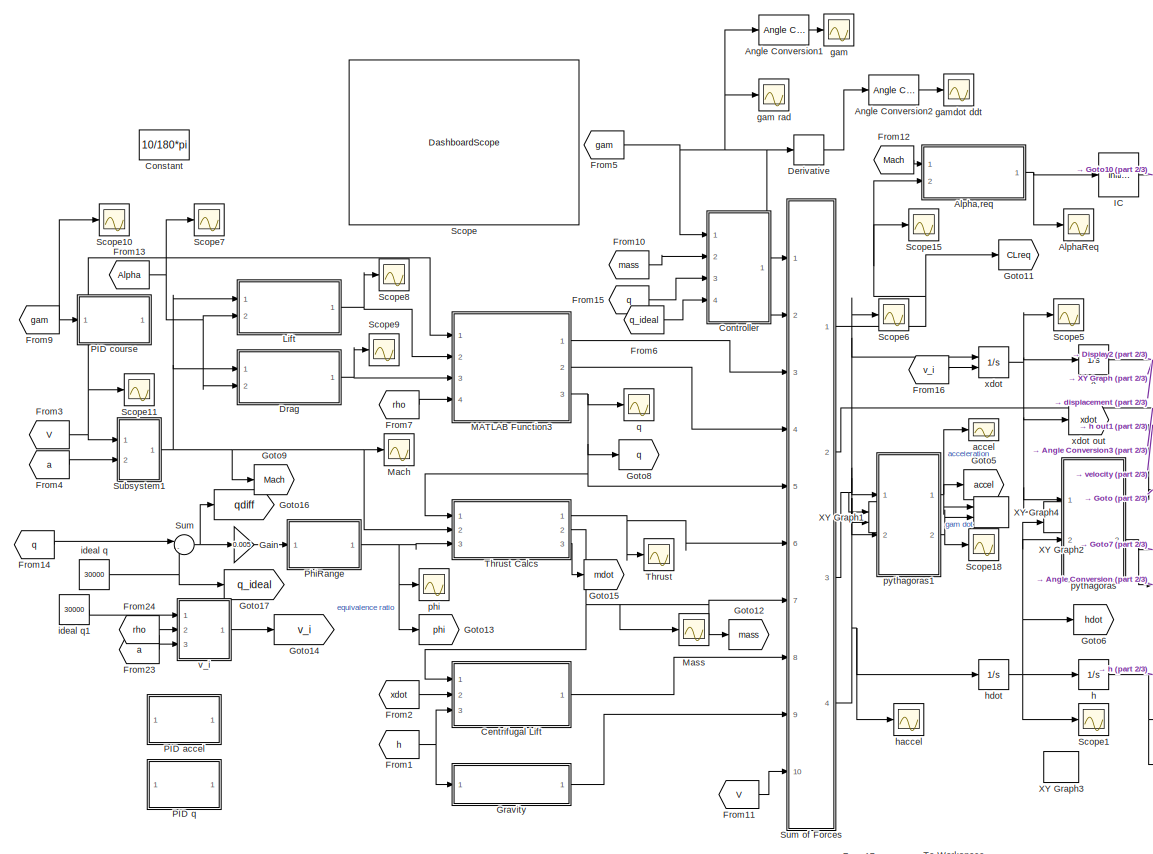
[diagram: root canvas - part 1/3, middle left region]
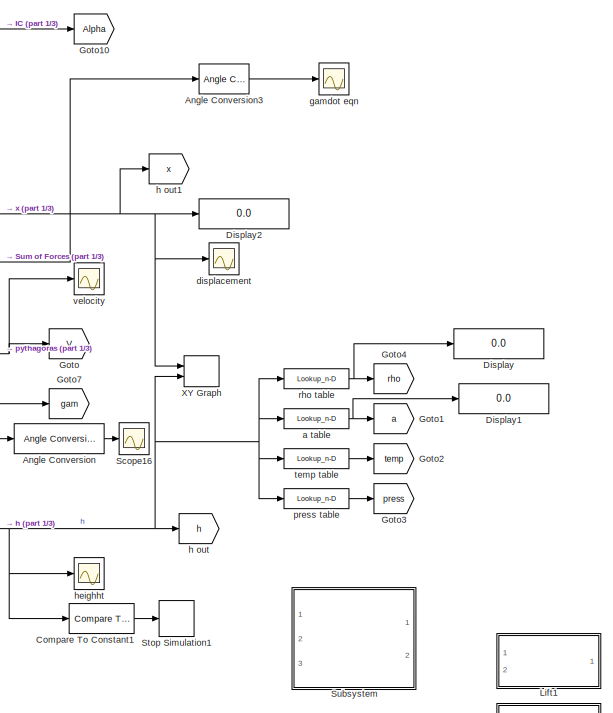
[diagram: root canvas - part 2/3, middle right region]
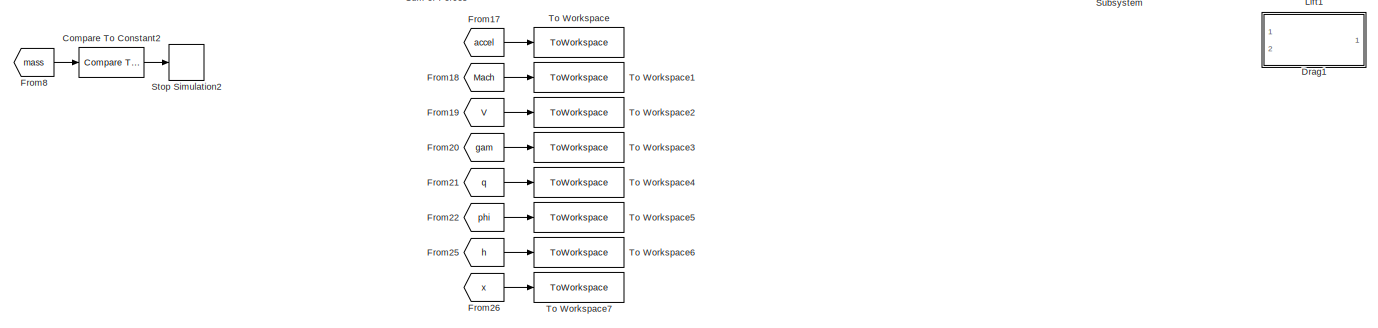
[diagram: root canvas - part 3/3, full width, bottom band]
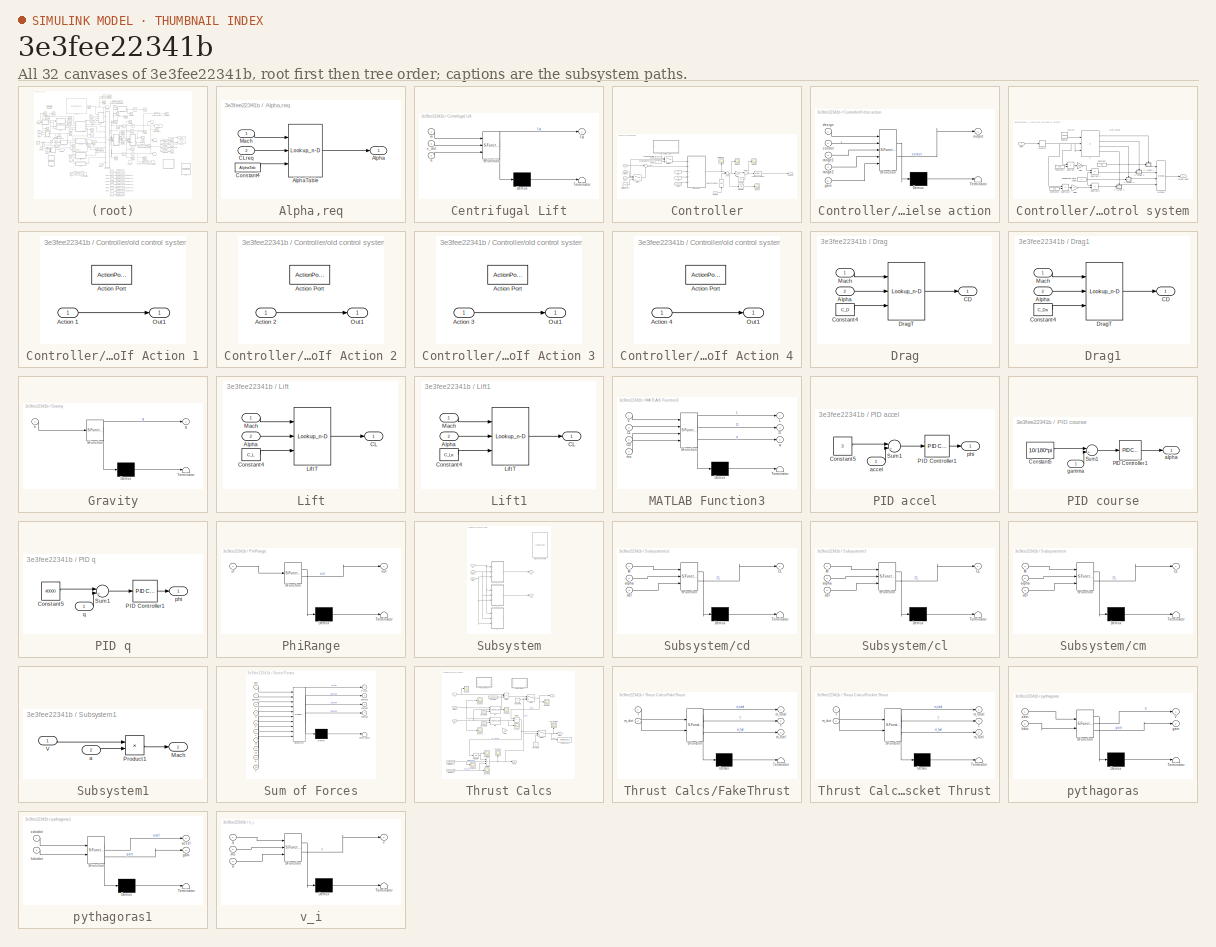
[diagram: thumbnail index - all 32 canvases of the model, root first then tree order]
MODEL slx_3e3fee22341b
KIND model
CONFIG AbsTol = auto
CONFIG EnableMultiTasking = off
CONFIG FixedStep = 0.1
CONFIG MaxStep = auto
CONFIG MinStep = auto
CONFIG RelTol = 1e-3
CONFIG SampleTimeConstraint = Unconstrained
CONFIG SolverName = ode4
CONFIG StartTime = 0.0
CONFIG StopTime = 1800
BLOCK [SubSystem] Alpha,req
  Ports = [2, 1]
  RequestExecContextInheritance = off
BLOCK [Outport] Alpha,req/Alpha
BLOCK [Lookup_n-D] Alpha,req/AlphaTable
  BreakpointsForDimension1 = [0.3 0.7 0.9 1.5 2.5 4 6 10 15 20 24]
  BreakpointsForDimension2 = [-0.5:0.01:0.5]
  InputPortMap = u0,u1,p221
  InternalRulePriority = Speed
  Ports = [3, 1]
  RndMeth = Simplest
  TableSource = Input port
BLOCK [Inport] Alpha,req/CLreq
  Port = 2
BLOCK [Constant] Alpha,req/Constant4
  Value = AlphaTab
  VectorParams1D = off
BLOCK [Inport] Alpha,req/Mach
BLOCK [Scope] AlphaReq
  Floating = off
  NumInputPorts = 1
  Ports = [1]
  ScopeSpecificationString = Simulink.scopes.TimeScopeBlockCfg('CurrentConfiguration', extmgr.ConfigurationSet(extmgr.Configuration('Core','General UI',true),extmgr.Configuration('Core','Source UI',true),extmgr.Configuration('Sources','WiredSimulink',true,'DataLoggingVariableName','ScopeData5'),extmgr.Configuration('Visuals','Time Domain',true,'SerializedDisplays',{struct('MinYLimReal','-4.33618','MaxYLimReal','7.61055','YLab...<+1496ch>
BLOCK [Reference] Angle Conversion  REF=aerolibconvert2/Angle Conversion
  Ports = [1, 1]
  SourceBlock = aerolibconvert2/Angle Conversion
  SourceProductBaseCode = AE
  SourceType = Angle Conversion
BLOCK [Reference] Angle Conversion1  REF=aerolibconvert2/Angle Conversion
  Ports = [1, 1]
  SourceBlock = aerolibconvert2/Angle Conversion
  SourceProductBaseCode = AE
  SourceType = Angle Conversion
BLOCK [Reference] Angle Conversion2  REF=aerolibconvert2/Angle Conversion
  Ports = [1, 1]
  SourceBlock = aerolibconvert2/Angle Conversion
  SourceProductBaseCode = AE
  SourceType = Angle Conversion
BLOCK [Reference] Angle Conversion3  REF=aerolibconvert2/Angle Conversion
  Ports = [1, 1]
  SourceBlock = aerolibconvert2/Angle Conversion
  SourceProductBaseCode = AE
  SourceType = Angle Conversion
BLOCK [SubSystem] Centrifugal Lift
  ErrorFcn = Stateflow.Translate.translate
  PermitHierarchicalResolution = ExplicitOnly
  Ports = [3, 1]
  RequestExecContextInheritance = off
  SFBlockType = MATLAB Function
  TreatAsAtomicUnit = on
BLOCK [Demux] Centrifugal Lift/ Demux 
  Outputs = 1
  Ports = [1, 1]
BLOCK [S-Function] Centrifugal Lift/ SFunction 
  EnableBusSupport = on
  FunctionName = sf_sfun
  PortCounts = [3 2]
  Ports = [3, 2]
  SFcnIsStateOwnerBlock = off
  SFunctionDeploymentMode = off
  Tag = Stateflow S-Function 4
BLOCK [Terminator] Centrifugal Lift/ Terminator 
BLOCK [Outport] Centrifugal Lift/Lg
BLOCK [Inport] Centrifugal Lift/h
  Port = 3
BLOCK [Inport] Centrifugal Lift/m
BLOCK [Inport] Centrifugal Lift/x_dot
  Port = 2
BLOCK [Reference] Compare To Constant1  REF=simulink/Logic and Bit
Operations/Compare
To Constant
  Ports = [1, 1]
  SourceBlock = simulink/Logic and Bit\nOperations/Compare\nTo Constant
  SourceProductBaseCode = SL
  SourceType = Compare To Constant
BLOCK [Reference] Compare To Constant2  REF=simulink/Logic and Bit
Operations/Compare
To Constant
  Commented = on
  Ports = [1, 1]
  SourceBlock = simulink/Logic and Bit\nOperations/Compare\nTo Constant
  SourceProductBaseCode = SL
  SourceType = Compare To Constant
BLOCK [Constant] Constant
  Value = 10/180*pi
BLOCK [SubSystem] Controller
  Ports = [4, 1]
  RequestExecContextInheritance = off
BLOCK [Reference] Controller/Angle Conversion1  REF=aerolibconvert2/Angle Conversion
  Ports = [1, 1]
  SourceBlock = aerolibconvert2/Angle Conversion
  SourceProductBaseCode = AE
  SourceType = Angle Conversion
BLOCK [Reference] Controller/Angle Conversion2  REF=aerolibconvert2/Angle Conversion
  NameLocation = right
  Ports = [1, 1]
  SourceBlock = aerolibconvert2/Angle Conversion
  SourceProductBaseCode = AE
  SourceType = Angle Conversion
BLOCK [Constant] Controller/Constant
  Value = .01
BLOCK [Gain] Controller/Gain
  Gain = 2
BLOCK [Inport] Controller/Gamma
BLOCK [Integrator] Controller/Integrator
  Ports = [1, 1]
BLOCK [Sum] Controller/Sum
  Inputs = |+-+
  Ports = [3, 1]
BLOCK [Sum] Controller/Sum1
  Inputs = |++
  Ports = [2, 1]
BLOCK [Sum] Controller/Sum2
  Inputs = |-+
  Ports = [2, 1]
BLOCK [Switch] Controller/Switch
  InputSameDT = off
  SaturateOnIntegerOverflow = off
  Threshold = 63502.9
BLOCK [Switch] Controller/Switch1
  InputSameDT = off
  SaturateOnIntegerOverflow = off
  Threshold = 63502.9
BLOCK [Constant] Controller/designated climb angle
  Value = 2
BLOCK [Constant] Controller/designated descent angle
  Value = 0
BLOCK [Constant] Controller/gain
  Value = 10/1000
BLOCK [Outport] Controller/gamdoti
BLOCK [SubSystem] Controller/if else action
  ErrorFcn = Stateflow.Translate.translate
  PermitHierarchicalResolution = ExplicitOnly
  Ports = [5, 1]
  RequestExecContextInheritance = off
  SFBlockType = MATLAB Function
  TreatAsAtomicUnit = on
BLOCK [Demux] Controller/if else action/ Demux 
  Outputs = 1
  Ports = [1, 1]
BLOCK [S-Function] Controller/if else action/ SFunction 
  EnableBusSupport = on
  FunctionName = sf_sfun
  PortCounts = [5 2]
  Ports = [5, 2]
  SFcnIsStateOwnerBlock = off
  SFunctionDeploymentMode = off
  Tag = Stateflow S-Function 5
BLOCK [Terminator] Controller/if else action/ Terminator 
BLOCK [Inport] Controller/if else action/control
  Port = 2
BLOCK [Inport] Controller/if else action/design
BLOCK [Inport] Controller/if else action/gain
  Port = 5
BLOCK [Outport] Controller/if else action/output
  VectorParamsAs1DForOutWhenUnconnected = off
BLOCK [Inport] Controller/if else action/range1
  Port = 3
BLOCK [Inport] Controller/if else action/range2
  Port = 4
BLOCK [Inport] Controller/mass
  Port = 2
BLOCK [Constant] Controller/max
  Value = 70
BLOCK [Constant] Controller/min
  Value = -70
BLOCK [SubSystem] Controller/old control system
  Ports = [1, 1]
  RequestExecContextInheritance = off
BLOCK [Constant] Controller/old control system/Constant
  Value = -0.5
BLOCK [Constant] Controller/old control system/Constant1
  Value = 140
BLOCK [Constant] Controller/old control system/Constant2
  Value = -140
BLOCK [Gain] Controller/old control system/Gain
  Gain = 1/1000
BLOCK [Gain] Controller/old control system/Gain1
BLOCK [If] Controller/old control system/If
  ElseIfExpressions = u2 >= 140, 140> u3>-140
  IfExpression = u1 <= 6350.29
  NumInputs = 3
  Ports = [3, 4]
BLOCK [SubSystem] Controller/old control system/If Action 1
  Ports = [1, 1, 0, 0, 0, 0, 0, 1]
  RequestExecContextInheritance = off
  TreatAsAtomicUnit = on
BLOCK [Inport] Controller/old control system/If Action 1/Action 1
BLOCK [ActionPort] Controller/old control system/If Action 1/Action Port
  ActionPortLabel = if(u1 <= 6350.29)
BLOCK [Outport] Controller/old control system/If Action 1/Out1
  VectorParamsAs1DForOutWhenUnconnected = off
BLOCK [SubSystem] Controller/old control system/If Action 2
  Ports = [1, 1, 0, 0, 0, 0, 0, 1]
  RequestExecContextInheritance = off
  TreatAsAtomicUnit = on
BLOCK [Inport] Controller/old control system/If Action 2/Action 2
BLOCK [ActionPort] Controller/old control system/If Action 2/Action Port
  ActionPortLabel = elseif(u2 >= 140)
BLOCK [Outport] Controller/old control system/If Action 2/Out1
  VectorParamsAs1DForOutWhenUnconnected = off
BLOCK [SubSystem] Controller/old control system/If Action 3
  Ports = [1, 1, 0, 0, 0, 0, 0, 1]
  RequestExecContextInheritance = off
  TreatAsAtomicUnit = on
BLOCK [Inport] Controller/old control system/If Action 3/Action 3
BLOCK [ActionPort] Controller/old control system/If Action 3/Action Port
  ActionPortLabel = elseif( 140> u3>-140)
BLOCK [Outport] Controller/old control system/If Action 3/Out1
  VectorParamsAs1DForOutWhenUnconnected = off
BLOCK [SubSystem] Controller/old control system/If Action 4
  Ports = [1, 1, 0, 0, 0, 0, 0, 1]
  RequestExecContextInheritance = off
  TreatAsAtomicUnit = on
BLOCK [Inport] Controller/old control system/If Action 4/Action 4
BLOCK [ActionPort] Controller/old control system/If Action 4/Action Port
  ActionPortLabel = else
BLOCK [Outport] Controller/old control system/If Action 4/Out1
  VectorParamsAs1DForOutWhenUnconnected = off
BLOCK [Memory] Controller/old control system/Memory
BLOCK [Merge] Controller/old control system/Merge1
  Inputs = 4
  Ports = [4, 1]
BLOCK [Sum] Controller/old control system/Subtract
  IconShape = rectangular
  Inputs = +-
  Ports = [2, 1]
BLOCK [Sum] Controller/old control system/Subtract1
  IconShape = rectangular
  Inputs = -+
  Ports = [2, 1]
BLOCK [Sum] Controller/old control system/Subtract2
  IconShape = rectangular
  Inputs = +-
  Ports = [2, 1]
BLOCK [Sum] Controller/old control system/Subtract3
  IconShape = rectangular
  Inputs = +-
  Ports = [2, 1]
BLOCK [Constant] Controller/old control system/designated climb angle
  Value = 2
BLOCK [Constant] Controller/old control system/ideal q1
  Value = 45000
BLOCK [Inport] Controller/old control system/qdiff
BLOCK [Outport] Controller/old control system/target gam
BLOCK [Inport] Controller/q
  Port = 3
BLOCK [Constant] Controller/q after burnout
  Value = 13000
BLOCK [Inport] Controller/q_ideal
  Port = 4
BLOCK [Scope] Controller/stage1
  Floating = off
  NumInputPorts = 1
  Ports = [1]
  ScopeSpecificationString = Simulink.scopes.TimeScopeBlockCfg('CurrentConfiguration', extmgr.ConfigurationSet(extmgr.Configuration('Core','General UI',true),extmgr.Configuration('Core','Source UI',true),extmgr.Configuration('Sources','WiredSimulink',true,'DataLoggingVariableName','ScopeData6'),extmgr.Configuration('Visuals','Time Domain',true,'SerializedDisplays',{struct('MinYLimReal','-5.33444','MaxYLimReal','3.67472','YLab...<+1417ch>
BLOCK [Scope] Controller/stage2
  Floating = off
  NumInputPorts = 1
  Ports = [1]
  ScopeSpecificationString = Simulink.scopes.TimeScopeBlockCfg('CurrentConfiguration', extmgr.ConfigurationSet(extmgr.Configuration('Core','General UI',true),extmgr.Configuration('Core','Source UI',true),extmgr.Configuration('Sources','WiredSimulink',true,'DataLoggingVariableName','ScopeData7'),extmgr.Configuration('Visuals','Time Domain',true,'SerializedDisplays',{struct('MinYLimReal','-0.37295','MaxYLimReal','2.27477','YLab...<+1420ch>
BLOCK [Scope] Controller/stage3
  Floating = off
  NumInputPorts = 1
  Ports = [1]
  ScopeSpecificationString = Simulink.scopes.TimeScopeBlockCfg('CurrentConfiguration', extmgr.ConfigurationSet(extmgr.Configuration('Core','General UI',true),extmgr.Configuration('Core','Source UI',true),extmgr.Configuration('Sources','WiredSimulink',true,'DataLoggingVariableName','ScopeData8'),extmgr.Configuration('Visuals','Time Domain',true,'SerializedDisplays',{struct('MinYLimReal','-1.75893','MaxYLimReal','15.83034','YLa...<+1428ch>
BLOCK [Scope] Controller/target gam
  Floating = off
  NameLocation = right
  NumInputPorts = 1
  Ports = [1]
  ScopeSpecificationString = Simulink.scopes.TimeScopeBlockCfg('CurrentConfiguration', extmgr.ConfigurationSet(extmgr.Configuration('Core','General UI',true),extmgr.Configuration('Core','Source UI',true),extmgr.Configuration('Sources','WiredSimulink',true,'DataLoggingVariableName','ScopeData1'),extmgr.Configuration('Visuals','Time Domain',true,'SerializedDisplays',{struct('MinYLimReal','-18.45617','MaxYLimReal','4.27291','YLa...<+1506ch>
BLOCK [Derivative] Derivative
BLOCK [Display] Display
  Decimation = 1
  Ports = [1]
BLOCK [Display] Display1
  Decimation = 1
  Ports = [1]
BLOCK [Display] Display2
  Decimation = 1
  Ports = [1]
BLOCK [SubSystem] Drag
  Ports = [2, 1]
  RequestExecContextInheritance = off
BLOCK [Inport] Drag/Alpha
  Port = 2
BLOCK [Outport] Drag/CD
BLOCK [Constant] Drag/Constant4
  Value = C_D
  VectorParams1D = off
BLOCK [Lookup_n-D] Drag/DragT
  BreakpointsForDimension1 = [0.3 0.7 0.9 1.5 2.5 4 6 10 15 20 24]
  BreakpointsForDimension2 = [-15 -12 -10 -8 -6 -4 -2 -1 0 1 2 4 6 8 10 12 15]
  InputPortMap = u0,u1,p221
  InternalRulePriority = Speed
  Ports = [3, 1]
  RndMeth = Simplest
  TableSource = Input port
BLOCK [Inport] Drag/Mach
BLOCK [SubSystem] Drag1
  Commented = on
  Ports = [2, 1]
  RequestExecContextInheritance = off
BLOCK [Inport] Drag1/Alpha
  Port = 2
BLOCK [Outport] Drag1/CD
BLOCK [Constant] Drag1/Constant4
  Value = C_Da
  VectorParams1D = off
BLOCK [Lookup_n-D] Drag1/DragT
  BreakpointsForDimension1 = [0.3 0.7 0.9 1.5 2.5 4 6 10 15 20 24]
  BreakpointsForDimension2 = [-1\n0\n1\n2\n4\n6\n8\n10\n12]
  InputPortMap = u0,u1,p221
  InternalRulePriority = Speed
  Ports = [3, 1]
  RndMeth = Simplest
  TableSource = Input port
BLOCK [Inport] Drag1/Mach
BLOCK [From] From1
  GotoTag = h
BLOCK [From] From10
  GotoTag = mass
BLOCK [From] From11
  GotoTag = V
BLOCK [From] From12
  GotoTag = Mach
BLOCK [From] From13
  GotoTag = Alpha
BLOCK [From] From14
  GotoTag = q
BLOCK [From] From15
  GotoTag = q
BLOCK [From] From16
  GotoTag = v_i
BLOCK [From] From17
  GotoTag = accel
BLOCK [From] From18
  GotoTag = Mach
BLOCK [From] From19
  GotoTag = V
BLOCK [From] From2
  GotoTag = xdot
BLOCK [From] From20
  GotoTag = gam
BLOCK [From] From21
  GotoTag = q
BLOCK [From] From22
  GotoTag = phi
BLOCK [From] From23
  GotoTag = a
BLOCK [From] From24
  GotoTag = rho
BLOCK [From] From25
  GotoTag = h
BLOCK [From] From26
  GotoTag = x
BLOCK [From] From3
  GotoTag = V
BLOCK [From] From4
  GotoTag = a
BLOCK [From] From5
  GotoTag = gam
BLOCK [From] From6
  GotoTag = q_ideal
BLOCK [From] From7
  GotoTag = rho
BLOCK [From] From8
  GotoTag = mass
BLOCK [From] From9
  GotoTag = gam
BLOCK [Gain] Gain
  Gain = 0.005
BLOCK [Goto] Goto
  GotoTag = V
BLOCK [Goto] Goto1
  GotoTag = a
BLOCK [Goto] Goto10
  GotoTag = Alpha
BLOCK [Goto] Goto11
  GotoTag = CLreq
BLOCK [Goto] Goto12
  GotoTag = mass
BLOCK [Goto] Goto13
  GotoTag = phi
BLOCK [Goto] Goto14
  GotoTag = v_i
BLOCK [Goto] Goto15
  GotoTag = mdot
BLOCK [Goto] Goto16
  GotoTag = qdiff
BLOCK [Goto] Goto17
  GotoTag = q_ideal
BLOCK [Goto] Goto2
  GotoTag = temp
BLOCK [Goto] Goto3
  GotoTag = press
BLOCK [Goto] Goto4
  GotoTag = rho
BLOCK [Goto] Goto5
  GotoTag = accel
BLOCK [Goto] Goto6
  GotoTag = hdot
BLOCK [Goto] Goto7
  GotoTag = gam
BLOCK [Goto] Goto8
  GotoTag = q
BLOCK [Goto] Goto9
  GotoTag = Mach
BLOCK [SubSystem] Gravity
  ErrorFcn = Stateflow.Translate.translate
  PermitHierarchicalResolution = ExplicitOnly
  Ports = [1, 1]
  RequestExecContextInheritance = off
  SFBlockType = MATLAB Function
  TreatAsAtomicUnit = on
BLOCK [Demux] Gravity/ Demux 
  Outputs = 1
  Ports = [1, 1]
BLOCK [S-Function] Gravity/ SFunction 
  EnableBusSupport = on
  FunctionName = sf_sfun
  PortCounts = [1 2]
  Ports = [1, 2]
  SFcnIsStateOwnerBlock = off
  SFunctionDeploymentMode = off
  Tag = Stateflow S-Function 6
BLOCK [Terminator] Gravity/ Terminator 
BLOCK [Outport] Gravity/g
BLOCK [Inport] Gravity/h
BLOCK [InitialCondition] IC
BLOCK [SubSystem] Lift
  Ports = [2, 1]
  RequestExecContextInheritance = off
BLOCK [Inport] Lift/Alpha
  Port = 2
BLOCK [Outport] Lift/CL
BLOCK [Constant] Lift/Constant4
  Value = C_L
  VectorParams1D = off
BLOCK [Lookup_n-D] Lift/LiftT
  BreakpointsForDimension1 = [0.3 0.7 0.9 1.5 2.5 4 6 10 15 20 24]
  BreakpointsForDimension2 = [-15 -12 -10 -8 -6 -4 -2 -1 0 1 2 4 6 8 10 12 15]
  InputPortMap = u0,u1,p221
  InternalRulePriority = Speed
  Ports = [3, 1]
  RndMeth = Simplest
  TableSource = Input port
BLOCK [Inport] Lift/Mach
BLOCK [SubSystem] Lift1
  Commented = on
  Ports = [2, 1]
  RequestExecContextInheritance = off
BLOCK [Inport] Lift1/Alpha
  Port = 2
BLOCK [Outport] Lift1/CL
BLOCK [Constant] Lift1/Constant4
  Value = C_La
  VectorParams1D = off
BLOCK [Lookup_n-D] Lift1/LiftT
  BreakpointsForDimension1 = [0.3 0.7 0.9 1.5 2.5 4 6 10 15 20 24]
  BreakpointsForDimension2 = [-1\n0\n1\n2\n4\n6\n8\n10\n12]
  InputPortMap = u0,u1,p221
  InternalRulePriority = Speed
  Ports = [3, 1]
  RndMeth = Simplest
  TableSource = Input port
BLOCK [Inport] Lift1/Mach
BLOCK [SubSystem] MATLAB Function3
  ErrorFcn = Stateflow.Translate.translate
  PermitHierarchicalResolution = ExplicitOnly
  Ports = [4, 3]
  RequestExecContextInheritance = off
  SFBlockType = MATLAB Function
  TreatAsAtomicUnit = on
BLOCK [Demux] MATLAB Function3/ Demux 
  Outputs = 1
  Ports = [1, 1]
BLOCK [S-Function] MATLAB Function3/ SFunction 
  EnableBusSupport = on
  FunctionName = sf_sfun
  PortCounts = [4 4]
  Ports = [4, 4]
  SFcnIsStateOwnerBlock = off
  SFunctionDeploymentMode = off
  Tag = Stateflow S-Function 18
BLOCK [Terminator] MATLAB Function3/ Terminator 
BLOCK [Inport] MATLAB Function3/CD
  Port = 3
BLOCK [Inport] MATLAB Function3/CL
  Port = 2
BLOCK [Outport] MATLAB Function3/D
  Port = 2
BLOCK [Outport] MATLAB Function3/L
BLOCK [Inport] MATLAB Function3/V
BLOCK [Outport] MATLAB Function3/q
  Port = 3
  VectorParamsAs1DForOutWhenUnconnected = off
BLOCK [Inport] MATLAB Function3/rho
  Port = 4
BLOCK [Scope] Mach
  Floating = off
  NumInputPorts = 1
  Ports = [1]
  ScopeSpecificationString = Simulink.scopes.TimeScopeBlockCfg('CurrentConfiguration', extmgr.ConfigurationSet(extmgr.Configuration('Core','General UI',true),extmgr.Configuration('Core','Source UI',true),extmgr.Configuration('Sources','WiredSimulink',true,'DataLoggingVariableName','ScopeData3'),extmgr.Configuration('Visuals','Time Domain',true,'SerializedDisplays',{struct('MinYLimReal','-0.27897','MaxYLimReal','10.81037','YLa...<+1501ch>
BLOCK [Scope] Mass
  Floating = off
  NumInputPorts = 1
  Ports = [1]
  ScopeSpecificationString = Simulink.scopes.TimeScopeBlockCfg('CurrentConfiguration', extmgr.ConfigurationSet(extmgr.Configuration('Core','General UI',true),extmgr.Configuration('Core','Source UI',true),extmgr.Configuration('Sources','WiredSimulink',true,'DataLoggingVariableName','ScopeData4'),extmgr.Configuration('Visuals','Time Domain',true,'SerializedDisplays',{struct('MinYLimReal','54441.71878','MaxYLimReal','145037.1423...<+1547ch>
BLOCK [SubSystem] PID accel
  Commented = on
  Ports = [1, 1]
  RequestExecContextInheritance = off
BLOCK [Constant] PID accel/Constant5
  Value = 3
BLOCK [Reference] PID accel/PID Controller1  REF=slpidlib/PID Controller
  Ports = [1, 1]
  SourceBlock = slpidlib/PID Controller
  SourceProductBaseCode = SL
  SourceType = PID 1dof
BLOCK [Sum] PID accel/Sum1
  Inputs = |+-
  Ports = [2, 1]
BLOCK [Inport] PID accel/accel
BLOCK [Outport] PID accel/phi
BLOCK [SubSystem] PID course
  Commented = on
  Ports = [1, 1]
  RequestExecContextInheritance = off
BLOCK [Constant] PID course/Constant5
  Value = 10/180*pi
BLOCK [Reference] PID course/PID Controller1  REF=slpidlib/PID Controller
  Ports = [1, 1]
  SourceBlock = slpidlib/PID Controller
  SourceProductBaseCode = SL
  SourceType = PID 1dof
BLOCK [Sum] PID course/Sum1
  Inputs = |+-
  Ports = [2, 1]
BLOCK [Outport] PID course/alpha
BLOCK [Inport] PID course/gamma
BLOCK [SubSystem] PID q
  Commented = on
  Ports = [1, 1]
  RequestExecContextInheritance = off
BLOCK [Constant] PID q/Constant5
  Value = 40000
BLOCK [Reference] PID q/PID Controller1  REF=slpidlib/PID Controller
  Ports = [1, 1]
  SourceBlock = slpidlib/PID Controller
  SourceProductBaseCode = SL
  SourceType = PID 1dof
BLOCK [Sum] PID q/Sum1
  Inputs = |+-
  Ports = [2, 1]
BLOCK [Outport] PID q/phi
BLOCK [Inport] PID q/q
BLOCK [SubSystem] PhiRange
  ErrorFcn = Stateflow.Translate.translate
  PermitHierarchicalResolution = ExplicitOnly
  Ports = [1, 1]
  RequestExecContextInheritance = off
  SFBlockType = MATLAB Function
  TreatAsAtomicUnit = on
BLOCK [Demux] PhiRange/ Demux 
  Outputs = 1
  Ports = [1, 1]
BLOCK [S-Function] PhiRange/ SFunction 
  EnableBusSupport = on
  FunctionName = sf_sfun
  PortCounts = [1 2]
  Ports = [1, 2]
  SFcnIsStateOwnerBlock = off
  SFunctionDeploymentMode = off
  Tag = Stateflow S-Function 11
BLOCK [Terminator] PhiRange/ Terminator 
BLOCK [Inport] PhiRange/in
BLOCK [Outport] PhiRange/out
  VectorParamsAs1DForOutWhenUnconnected = off
BLOCK [DashboardScope] Scope
  Markers = on
  Ymax = 100
  Ymin = 0
BLOCK [Scope] Scope1
  Floating = off
  NumInputPorts = 1
  Ports = [1]
  ScopeSpecificationString = Simulink.scopes.TimeScopeBlockCfg('CurrentConfiguration', extmgr.ConfigurationSet(extmgr.Configuration('Core','General UI',true),extmgr.Configuration('Core','Source UI',true),extmgr.Configuration('Sources','WiredSimulink',true,'DataLoggingVariableName','ScopeData1'),extmgr.Configuration('Visuals','Time Domain',true,'SerializedDisplays',{struct('MinYLimReal','-5.8796','MaxYLimReal','52.91644','YLab...<+1422ch>
BLOCK [Scope] Scope10
  Floating = off
  NumInputPorts = 1
  Ports = [1]
  ScopeSpecificationString = Simulink.scopes.TimeScopeBlockCfg('CurrentConfiguration', extmgr.ConfigurationSet(extmgr.Configuration('Core','General UI',true),extmgr.Configuration('Core','Source UI',true),extmgr.Configuration('Sources','WiredSimulink',true,'DataLoggingVariableName','ScopeData9'),extmgr.Configuration('Visuals','Time Domain',true,'SerializedDisplays',{struct('MinYLimReal','-1.96298','MaxYLimReal','1.96008','YLab...<+1438ch>
BLOCK [Scope] Scope11
  Floating = off
  NumInputPorts = 1
  Ports = [1]
  ScopeSpecificationString = Simulink.scopes.TimeScopeBlockCfg('CurrentConfiguration', extmgr.ConfigurationSet(extmgr.Configuration('Core','General UI',true),extmgr.Configuration('Core','Source UI',true),extmgr.Configuration('Sources','WiredSimulink',true,'DataLoggingVariableName','ScopeData10'),extmgr.Configuration('Visuals','Time Domain',true,'SerializedDisplays',{struct('MinYLimReal','155.46933','MaxYLimReal','712.0545','Y...<+1447ch>
BLOCK [Scope] Scope15
  Floating = off
  NumInputPorts = 1
  Ports = [1]
  ScopeSpecificationString = Simulink.scopes.TimeScopeBlockCfg('CurrentConfiguration', extmgr.ConfigurationSet(extmgr.Configuration('Core','General UI',true),extmgr.Configuration('Core','Source UI',true),extmgr.Configuration('Sources','WiredSimulink',true,'DataLoggingVariableName','ScopeData2'),extmgr.Configuration('Visuals','Time Domain',true,'SerializedDisplays',{struct('MinYLimReal','-11451217437123309185835034724088077695...<+2723ch>
BLOCK [Scope] Scope16
  Floating = off
  NumInputPorts = 1
  Ports = [1]
  ScopeSpecificationString = Simulink.scopes.TimeScopeBlockCfg('CurrentConfiguration', extmgr.ConfigurationSet(extmgr.Configuration('Core','General UI',true),extmgr.Configuration('Core','Source UI',true),extmgr.Configuration('Sources','WiredSimulink',true,'DataLoggingVariableName','ScopeData10'),extmgr.Configuration('Visuals','Time Domain',true,'SerializedDisplays',{struct('MinYLimReal','-0.13239','MaxYLimReal','1.19147','YLa...<+1431ch>
BLOCK [Scope] Scope18
  Floating = off
  NumInputPorts = 1
  Ports = [1]
  ScopeSpecificationString = Simulink.scopes.TimeScopeBlockCfg('CurrentConfiguration', extmgr.ConfigurationSet(extmgr.Configuration('Core','General UI',true),extmgr.Configuration('Core','Source UI',true),extmgr.Configuration('Sources','WiredSimulink',true,'DataLoggingVariableName','ScopeData12'),extmgr.Configuration('Visuals','Time Domain',true,'SerializedDisplays',{struct('MinYLimReal','-1.96271','MaxYLimReal','1.96154','YLa...<+1468ch>
BLOCK [Scope] Scope5
  Floating = off
  NumInputPorts = 1
  Ports = [1]
  ScopeSpecificationString = Simulink.scopes.TimeScopeBlockCfg('CurrentConfiguration', extmgr.ConfigurationSet(extmgr.Configuration('Core','General UI',true),extmgr.Configuration('Core','Source UI',true),extmgr.Configuration('Sources','WiredSimulink',true,'DataLoggingVariableName','ScopeData4'),extmgr.Configuration('Visuals','Time Domain',true,'SerializedDisplays',{struct('MinYLimReal','851.39006','MaxYLimReal','2061.20014','...<+1456ch>
BLOCK [Scope] Scope6
  Floating = off
  NumInputPorts = 1
  Ports = [1]
  ScopeSpecificationString = Simulink.scopes.TimeScopeBlockCfg('CurrentConfiguration', extmgr.ConfigurationSet(extmgr.Configuration('Core','General UI',true),extmgr.Configuration('Core','Source UI',true),extmgr.Configuration('Sources','WiredSimulink',true,'DataLoggingVariableName','ScopeData5'),extmgr.Configuration('Visuals','Time Domain',true,'SerializedDisplays',{struct('MinYLimReal','-10.41305','MaxYLimReal','36.09615','YL...<+1436ch>
BLOCK [Scope] Scope7
  Floating = off
  NumInputPorts = 1
  Ports = [1]
  ScopeSpecificationString = Simulink.scopes.TimeScopeBlockCfg('CurrentConfiguration', extmgr.ConfigurationSet(extmgr.Configuration('Core','General UI',true),extmgr.Configuration('Core','Source UI',true),extmgr.Configuration('Sources','WiredSimulink',true,'DataLoggingVariableName','ScopeData6'),extmgr.Configuration('Visuals','Time Domain',true,'SerializedDisplays',{struct('MinYLimReal','-16.54777','MaxYLimReal','25.00457','YL...<+1510ch>
BLOCK [Scope] Scope8
  Floating = off
  NumInputPorts = 1
  Ports = [1]
  ScopeSpecificationString = Simulink.scopes.TimeScopeBlockCfg('CurrentConfiguration', extmgr.ConfigurationSet(extmgr.Configuration('Core','General UI',true),extmgr.Configuration('Core','Source UI',true),extmgr.Configuration('Sources','WiredSimulink',true,'DataLoggingVariableName','ScopeData7'),extmgr.Configuration('Visuals','Time Domain',true,'SerializedDisplays',{struct('MinYLimReal','-0.22698','MaxYLimReal','2.01623','YLab...<+1437ch>
BLOCK [Scope] Scope9
  Floating = off
  NumInputPorts = 1
  Ports = [1]
  ScopeSpecificationString = Simulink.scopes.TimeScopeBlockCfg('CurrentConfiguration', extmgr.ConfigurationSet(extmgr.Configuration('Core','General UI',true),extmgr.Configuration('Core','Source UI',true),extmgr.Configuration('Sources','WiredSimulink',true,'DataLoggingVariableName','ScopeData8'),extmgr.Configuration('Visuals','Time Domain',true,'SerializedDisplays',{struct('MinYLimReal','-7.23522','MaxYLimReal','65.11702','YLa...<+1447ch>
BLOCK [Stop] Stop Simulation1
BLOCK [Stop] Stop Simulation2
  Commented = on
BLOCK [SubSystem] Subsystem
  Commented = on
  Ports = [3, 2]
  RequestExecContextInheritance = off
BLOCK [Lookup_n-D] Subsystem/3-D Lookup Table
  BreakpointsForDimension1Source = Input port
  BreakpointsForDimension2Source = Input port
  BreakpointsForDimension3 = [5, 7]
  InputPortMap = u0,u1,p221,p5,p7
  InternalRulePriority = Speed
  Ports = [5, 1]
  RndMeth = Simplest
  Table = reshape(repmat([4 5 6;16 19 20;10 18 23],1,2),[3,3,2])
  TableSource = Input port
BLOCK [Outport] Subsystem/CD
  Port = 2
BLOCK [Outport] Subsystem/CL
BLOCK [Inport] Subsystem/M
BLOCK [Inport] Subsystem/alpha
  Port = 2
BLOCK [SubSystem] Subsystem/cd
  ErrorFcn = Stateflow.Translate.translate
  PermitHierarchicalResolution = ExplicitOnly
  Ports = [3, 1]
  RequestExecContextInheritance = off
  SFBlockType = MATLAB Function
  TreatAsAtomicUnit = on
BLOCK [Demux] Subsystem/cd/ Demux 
  Outputs = 1
  Ports = [1, 1]
BLOCK [S-Function] Subsystem/cd/ SFunction 
  EnableBusSupport = on
  FunctionName = sf_sfun
  PortCounts = [3 2]
  Ports = [3, 2]
  SFcnIsStateOwnerBlock = off
  SFunctionDeploymentMode = off
  Tag = Stateflow S-Function 12
BLOCK [Terminator] Subsystem/cd/ Terminator 
BLOCK [Outport] Subsystem/cd/CL
BLOCK [Inport] Subsystem/cd/M
BLOCK [Inport] Subsystem/cd/alpha
  Port = 2
BLOCK [Inport] Subsystem/cd/del
  Port = 3
BLOCK [SubSystem] Subsystem/cl
  ErrorFcn = Stateflow.Translate.translate
  PermitHierarchicalResolution = ExplicitOnly
  Ports = [3, 1]
  RequestExecContextInheritance = off
  SFBlockType = MATLAB Function
  TreatAsAtomicUnit = on
BLOCK [Demux] Subsystem/cl/ Demux 
  Outputs = 1
  Ports = [1, 1]
BLOCK [S-Function] Subsystem/cl/ SFunction 
  EnableBusSupport = on
  FunctionName = sf_sfun
  PortCounts = [3 2]
  Ports = [3, 2]
  SFcnIsStateOwnerBlock = off
  SFunctionDeploymentMode = off
  Tag = Stateflow S-Function 9
BLOCK [Terminator] Subsystem/cl/ Terminator 
BLOCK [Outport] Subsystem/cl/CL
BLOCK [Inport] Subsystem/cl/M
BLOCK [Inport] Subsystem/cl/alpha
  Port = 2
BLOCK [Inport] Subsystem/cl/del
  Port = 3
BLOCK [SubSystem] Subsystem/cm
  Commented = on
  ErrorFcn = Stateflow.Translate.translate
  PermitHierarchicalResolution = ExplicitOnly
  Ports = [3, 1]
  RequestExecContextInheritance = off
  SFBlockType = MATLAB Function
  TreatAsAtomicUnit = on
BLOCK [Demux] Subsystem/cm/ Demux 
  Outputs = 1
  Ports = [1, 1]
BLOCK [S-Function] Subsystem/cm/ SFunction 
  EnableBusSupport = on
  FunctionName = sf_sfun
  PortCounts = [3 2]
  Ports = [3, 2]
  SFcnIsStateOwnerBlock = off
  SFunctionDeploymentMode = off
  Tag = Stateflow S-Function 13
BLOCK [Terminator] Subsystem/cm/ Terminator 
BLOCK [Outport] Subsystem/cm/CL
BLOCK [Inport] Subsystem/cm/M
BLOCK [Inport] Subsystem/cm/alpha
  Port = 2
BLOCK [Inport] Subsystem/cm/del
  Port = 3
BLOCK [Inport] Subsystem/del
  Port = 3
BLOCK [SubSystem] Subsystem1
  Ports = [2, 1]
  RequestExecContextInheritance = off
BLOCK [Outport] Subsystem1/Mach
  Unit = 1
  VectorParamsAs1DForOutWhenUnconnected = off
BLOCK [Product] Subsystem1/Product1
  InputSameDT = on
  Inputs = */
  OutDataTypeStr = Inherit: Same as first input
  Ports = [2, 1]
  SaturateOnIntegerOverflow = on
BLOCK [Inport] Subsystem1/V
BLOCK [Inport] Subsystem1/a
  Port = 2
BLOCK [Sum] Sum
  Inputs = |-+
  Ports = [2, 1]
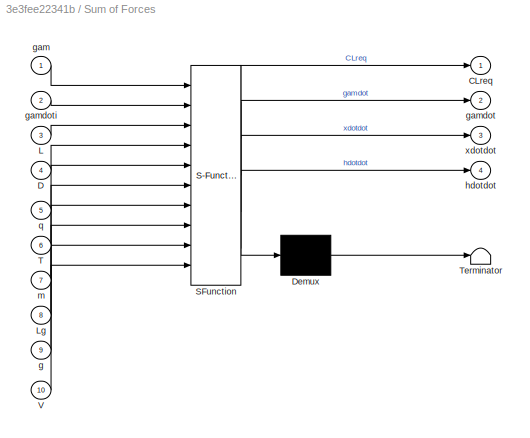
BLOCK [SubSystem] Sum of Forces
  ErrorFcn = Stateflow.Translate.translate
  PermitHierarchicalResolution = ExplicitOnly
  Ports = [10, 4]
  RequestExecContextInheritance = off
  SFBlockType = MATLAB Function
  TreatAsAtomicUnit = on
BLOCK [Demux] Sum of Forces/ Demux 
  Outputs = 1
  Ports = [1, 1]
BLOCK [S-Function] Sum of Forces/ SFunction 
  EnableBusSupport = on
  FunctionName = sf_sfun
  PortCounts = [10 5]
  Ports = [10, 5]
  SFcnIsStateOwnerBlock = off
  SFunctionDeploymentMode = off
  Tag = Stateflow S-Function 2
BLOCK [Terminator] Sum of Forces/ Terminator 
BLOCK [Outport] Sum of Forces/CLreq
BLOCK [Inport] Sum of Forces/D
  Port = 4
BLOCK [Inport] Sum of Forces/L
  Port = 3
BLOCK [Inport] Sum of Forces/Lg
  Port = 8
BLOCK [Inport] Sum of Forces/T
  Port = 6
BLOCK [Inport] Sum of Forces/V
  Port = 10
BLOCK [Inport] Sum of Forces/g
  Port = 9
BLOCK [Inport] Sum of Forces/gam
BLOCK [Outport] Sum of Forces/gamdot
  Port = 2
BLOCK [Inport] Sum of Forces/gamdoti
  Port = 2
BLOCK [Outport] Sum of Forces/hdotdot
  Port = 4
BLOCK [Inport] Sum of Forces/m
  Port = 7
BLOCK [Inport] Sum of Forces/q
  Port = 5
BLOCK [Outport] Sum of Forces/xdotdot
  Port = 3
BLOCK [Scope] Thrust
  Floating = off
  NumInputPorts = 1
  Ports = [1]
  ScopeSpecificationString = Simulink.scopes.TimeScopeBlockCfg('CurrentConfiguration', extmgr.ConfigurationSet(extmgr.Configuration('Core','General UI',true),extmgr.Configuration('Core','Source UI',true),extmgr.Configuration('Sources','WiredSimulink',true,'DataLoggingVariableName','ScopeData1'),extmgr.Configuration('Visuals','Time Domain',true,'SerializedDisplays',{struct('MinYLimReal','-1.00000','MaxYLimReal','1.00000','YLab...<+1455ch>
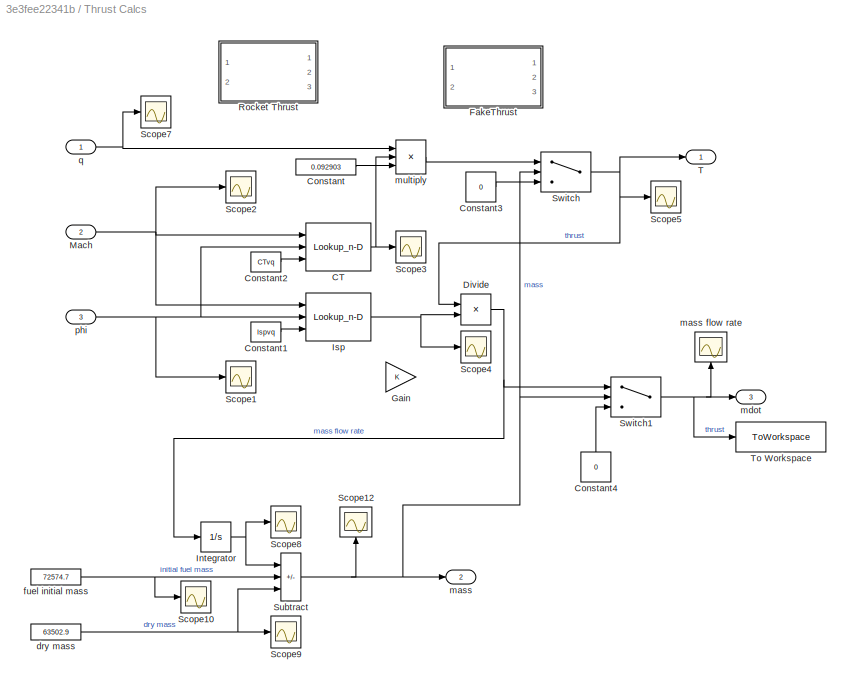
BLOCK [SubSystem] Thrust Calcs
  Ports = [3, 3]
  RequestExecContextInheritance = off
BLOCK [Lookup_n-D] Thrust Calcs/CT
  BreakpointsForDimension1 = [0:0.1:25]
  BreakpointsForDimension2 = [0:0.1:10]
  InputPortMap = u0,u1,p221
  InternalRulePriority = Speed
  Ports = [3, 1]
  RndMeth = Simplest
  TableSource = Input port
BLOCK [Constant] Thrust Calcs/Constant
  Value = 0.092903
BLOCK [Constant] Thrust Calcs/Constant1
  Value = Ispvq
  VectorParams1D = off
BLOCK [Constant] Thrust Calcs/Constant2
  Value = CTvq
  VectorParams1D = off
BLOCK [Constant] Thrust Calcs/Constant3
  Value = 0
BLOCK [Constant] Thrust Calcs/Constant4
  NameLocation = right
  Value = 0
BLOCK [Product] Thrust Calcs/Divide
  Inputs = */
  Ports = [2, 1]
BLOCK [SubSystem] Thrust Calcs/FakeThrust
  Commented = on
  ErrorFcn = Stateflow.Translate.translate
  PermitHierarchicalResolution = ExplicitOnly
  Ports = [2, 3]
  RequestExecContextInheritance = off
  SFBlockType = MATLAB Function
  TreatAsAtomicUnit = on
BLOCK [Demux] Thrust Calcs/FakeThrust/ Demux 
  Outputs = 1
  Ports = [1, 1]
BLOCK [S-Function] Thrust Calcs/FakeThrust/ SFunction 
  EnableBusSupport = on
  FunctionName = sf_sfun
  PortCounts = [2 4]
  Ports = [2, 4]
  SFcnIsStateOwnerBlock = off
  SFunctionDeploymentMode = off
  Tag = Stateflow S-Function 16
BLOCK [Terminator] Thrust Calcs/FakeThrust/ Terminator 
BLOCK [Outport] Thrust Calcs/FakeThrust/T
  Port = 2
BLOCK [Inport] Thrust Calcs/FakeThrust/m_dot
  Port = 2
BLOCK [Outport] Thrust Calcs/FakeThrust/m_fuel
  Port = 3
BLOCK [Outport] Thrust Calcs/FakeThrust/m_total
BLOCK [Inport] Thrust Calcs/FakeThrust/t
BLOCK [Gain] Thrust Calcs/Gain
BLOCK [Integrator] Thrust Calcs/Integrator
  InitialCondition = 100
  Ports = [1, 1]
BLOCK [Lookup_n-D] Thrust Calcs/Isp
  BreakpointsForDimension1 = [0:0.1:25]
  BreakpointsForDimension2 = [0:0.1:10]
  InputPortMap = u0,u1,p221
  InternalRulePriority = Speed
  Ports = [3, 1]
  RndMeth = Simplest
  TableSource = Input port
BLOCK [Inport] Thrust Calcs/Mach
  Port = 2
BLOCK [SubSystem] Thrust Calcs/Rocket Thrust
  Commented = on
  ErrorFcn = Stateflow.Translate.translate
  PermitHierarchicalResolution = ExplicitOnly
  Ports = [2, 3]
  RequestExecContextInheritance = off
  SFBlockType = MATLAB Function
  TreatAsAtomicUnit = on
BLOCK [Demux] Thrust Calcs/Rocket Thrust/ Demux 
  Outputs = 1
  Ports = [1, 1]
BLOCK [S-Function] Thrust Calcs/Rocket Thrust/ SFunction 
  EnableBusSupport = on
  FunctionName = sf_sfun
  PortCounts = [2 4]
  Ports = [2, 4]
  SFcnIsStateOwnerBlock = off
  SFunctionDeploymentMode = off
  Tag = Stateflow S-Function 17
BLOCK [Terminator] Thrust Calcs/Rocket Thrust/ Terminator 
BLOCK [Outport] Thrust Calcs/Rocket Thrust/T
  Port = 2
BLOCK [Inport] Thrust Calcs/Rocket Thrust/m_dot
  Port = 2
BLOCK [Outport] Thrust Calcs/Rocket Thrust/m_fuel
  Port = 3
BLOCK [Outport] Thrust Calcs/Rocket Thrust/m_total
BLOCK [Inport] Thrust Calcs/Rocket Thrust/t
BLOCK [Scope] Thrust Calcs/Scope1
  Floating = off
  NumInputPorts = 1
  Ports = [1]
  ScopeSpecificationString = Simulink.scopes.TimeScopeBlockCfg('CurrentConfiguration', extmgr.ConfigurationSet(extmgr.Configuration('Core','General UI',true),extmgr.Configuration('Core','Source UI',true),extmgr.Configuration('Sources','WiredSimulink',true,'DataLoggingVariableName','ScopeData7'),extmgr.Configuration('Visuals','Time Domain',true,'SerializedDisplays',{struct('MinYLimReal','-1.0212','MaxYLimReal','11.22458','YLab...<+1470ch>
BLOCK [Scope] Thrust Calcs/Scope10
  Floating = off
  NumInputPorts = 1
  Ports = [1]
  ScopeSpecificationString = Simulink.scopes.TimeScopeBlockCfg('CurrentConfiguration', extmgr.ConfigurationSet(extmgr.Configuration('Core','General UI',true),extmgr.Configuration('Core','Source UI',true),extmgr.Configuration('Sources','WiredSimulink',true,'DataLoggingVariableName','ScopeData9'),extmgr.Configuration('Visuals','Time Domain',true,'SerializedDisplays',{struct('MinYLimReal','62574.7','MaxYLimReal','82574.7','YLabe...<+1464ch>
BLOCK [Scope] Thrust Calcs/Scope12
  Floating = off
  NameLocation = right
  NumInputPorts = 1
  Ports = [1]
  ScopeSpecificationString = Simulink.scopes.TimeScopeBlockCfg('CurrentConfiguration', extmgr.ConfigurationSet(extmgr.Configuration('Core','General UI',true),extmgr.Configuration('Core','Source UI',true),extmgr.Configuration('Sources','WiredSimulink',true,'DataLoggingVariableName','ScopeData11'),extmgr.Configuration('Visuals','Time Domain',true,'SerializedDisplays',{struct('MinYLimReal','-287016.54595','MaxYLimReal','183088.0...<+1498ch>
BLOCK [Scope] Thrust Calcs/Scope2
  Floating = off
  NumInputPorts = 1
  Ports = [1]
  ScopeSpecificationString = Simulink.scopes.TimeScopeBlockCfg('CurrentConfiguration', extmgr.ConfigurationSet(extmgr.Configuration('Core','General UI',true),extmgr.Configuration('Core','Source UI',true),extmgr.Configuration('Sources','WiredSimulink',true,'DataLoggingVariableName','ScopeData1'),extmgr.Configuration('Visuals','Time Domain',true,'SerializedDisplays',{struct('MinYLimReal','5.83453','MaxYLimReal','7.15111','YLabe...<+1421ch>
BLOCK [Scope] Thrust Calcs/Scope3
  Floating = off
  NumInputPorts = 1
  Ports = [1]
  ScopeSpecificationString = Simulink.scopes.TimeScopeBlockCfg('CurrentConfiguration', extmgr.ConfigurationSet(extmgr.Configuration('Core','General UI',true),extmgr.Configuration('Core','Source UI',true),extmgr.Configuration('Sources','WiredSimulink',true,'DataLoggingVariableName','ScopeData2'),extmgr.Configuration('Visuals','Time Domain',true,'SerializedDisplays',{struct('MinYLimReal','171.52334','MaxYLimReal','486.08811','Y...<+1483ch>
BLOCK [Scope] Thrust Calcs/Scope4
  Floating = off
  NumInputPorts = 1
  Ports = [1]
  ScopeSpecificationString = Simulink.scopes.TimeScopeBlockCfg('CurrentConfiguration', extmgr.ConfigurationSet(extmgr.Configuration('Core','General UI',true),extmgr.Configuration('Core','Source UI',true),extmgr.Configuration('Sources','WiredSimulink',true,'DataLoggingVariableName','ScopeData3'),extmgr.Configuration('Visuals','Time Domain',true,'SerializedDisplays',{struct('MinYLimReal','-188.08534','MaxYLimReal','2763.32535',...<+1490ch>
BLOCK [Scope] Thrust Calcs/Scope5
  Floating = off
  NumInputPorts = 1
  Ports = [1]
  ScopeSpecificationString = Simulink.scopes.TimeScopeBlockCfg('CurrentConfiguration', extmgr.ConfigurationSet(extmgr.Configuration('Core','General UI',true),extmgr.Configuration('Core','Source UI',true),extmgr.Configuration('Sources','WiredSimulink',true,'DataLoggingVariableName','ScopeData4'),extmgr.Configuration('Visuals','Time Domain',true,'SerializedDisplays',{struct('MinYLimReal','-197323.83215','MaxYLimReal','1775914.4...<+1513ch>
BLOCK [Scope] Thrust Calcs/Scope7
  Floating = off
  NumInputPorts = 1
  Ports = [1]
  ScopeSpecificationString = Simulink.scopes.TimeScopeBlockCfg('CurrentConfiguration', extmgr.ConfigurationSet(extmgr.Configuration('Core','General UI',true),extmgr.Configuration('Core','Source UI',true),extmgr.Configuration('Sources','WiredSimulink',true,'DataLoggingVariableName','ScopeData6'),extmgr.Configuration('Visuals','Time Domain',true,'SerializedDisplays',{struct('MinYLimReal','29538.97844','MaxYLimReal','32391.19407...<+1477ch>
BLOCK [Scope] Thrust Calcs/Scope8
  Floating = off
  NumInputPorts = 1
  Ports = [1]
  ScopeSpecificationString = Simulink.scopes.TimeScopeBlockCfg('CurrentConfiguration', extmgr.ConfigurationSet(extmgr.Configuration('Core','General UI',true),extmgr.Configuration('Core','Source UI',true),extmgr.Configuration('Sources','WiredSimulink',true,'DataLoggingVariableName','ScopeData12'),extmgr.Configuration('Visuals','Time Domain',true,'SerializedDisplays',{struct('MinYLimReal','-10451.1075','MaxYLimReal','94059.9675...<+1507ch>
BLOCK [Scope] Thrust Calcs/Scope9
  Floating = off
  NumInputPorts = 1
  Ports = [1]
  ScopeSpecificationString = Simulink.scopes.TimeScopeBlockCfg('CurrentConfiguration', extmgr.ConfigurationSet(extmgr.Configuration('Core','General UI',true),extmgr.Configuration('Core','Source UI',true),extmgr.Configuration('Sources','WiredSimulink',true,'DataLoggingVariableName','ScopeData13'),extmgr.Configuration('Visuals','Time Domain',true,'SerializedDisplays',{struct('MinYLimReal','8323.01871','MaxYLimReal','150272.5534...<+1490ch>
BLOCK [Sum] Thrust Calcs/Subtract
  IconShape = rectangular
  Inputs = -++
  Ports = [3, 1]
BLOCK [Switch] Thrust Calcs/Switch
  InputSameDT = off
  SaturateOnIntegerOverflow = off
  Threshold = 63502.9
BLOCK [Switch] Thrust Calcs/Switch1
  InputSameDT = off
  SaturateOnIntegerOverflow = off
  Threshold = 63502.9
BLOCK [Outport] Thrust Calcs/T
BLOCK [ToWorkspace] Thrust Calcs/To Workspace
  FixptAsFi = on
  MaxDataPoints = inf
  Ports = [1]
  SampleTime = -1
  Save2DSignal = 2-D array (concatenate along first dimension)
  VariableName = mdot
BLOCK [Constant] Thrust Calcs/dry mass
  Value = 63502.9
BLOCK [Constant] Thrust Calcs/fuel initial mass
  Value = 72574.7
BLOCK [Outport] Thrust Calcs/mass
  Port = 2
BLOCK [Scope] Thrust Calcs/mass flow rate
  Floating = off
  NameLocation = right
  NumInputPorts = 1
  Ports = [1]
  ScopeSpecificationString = Simulink.scopes.TimeScopeBlockCfg('CurrentConfiguration', extmgr.ConfigurationSet(extmgr.Configuration('Core','General UI',true),extmgr.Configuration('Core','Source UI',true),extmgr.Configuration('Sources','WiredSimulink',true,'DataLoggingVariableName','ScopeData10'),extmgr.Configuration('Visuals','Time Domain',true,'SerializedDisplays',{struct('MinYLimReal','-52.50233','MaxYLimReal','440.90191','...<+1513ch>
BLOCK [Outport] Thrust Calcs/mdot
  Port = 3
BLOCK [Product] Thrust Calcs/multiply
  Inputs = ***
  Ports = [3, 1]
BLOCK [Inport] Thrust Calcs/phi
  Port = 3
BLOCK [Inport] Thrust Calcs/q
BLOCK [ToWorkspace] To Workspace
  FixptAsFi = on
  MaxDataPoints = inf
  Ports = [1]
  SampleTime = -1
  SaveFormat = Timeseries
  VariableName = accel
BLOCK [ToWorkspace] To Workspace1
  FixptAsFi = on
  MaxDataPoints = inf
  Ports = [1]
  SampleTime = -1
  VariableName = mach
BLOCK [ToWorkspace] To Workspace2
  FixptAsFi = on
  MaxDataPoints = inf
  Ports = [1]
  SampleTime = -1
  SaveFormat = Timeseries
  VariableName = v
BLOCK [ToWorkspace] To Workspace3
  FixptAsFi = on
  MaxDataPoints = inf
  Ports = [1]
  SampleTime = -1
  SaveFormat = Timeseries
  VariableName = gam
BLOCK [ToWorkspace] To Workspace4
  FixptAsFi = on
  MaxDataPoints = inf
  Ports = [1]
  SampleTime = -1
  VariableName = q
BLOCK [ToWorkspace] To Workspace5
  FixptAsFi = on
  MaxDataPoints = inf
  Ports = [1]
  SampleTime = -1
  SaveFormat = Timeseries
  VariableName = phi
BLOCK [ToWorkspace] To Workspace6
  FixptAsFi = on
  MaxDataPoints = inf
  Ports = [1]
  SampleTime = -1
  VariableName = h
BLOCK [ToWorkspace] To Workspace7
  FixptAsFi = on
  MaxDataPoints = inf
  Ports = [1]
  SampleTime = -1
  VariableName = x
BLOCK [Record] XY Graph
  CompatibilityTag = XY
  FileSettingsInternal = {"entries":[{"content":{"excelSettings":{"content":{},"type":"Streamout.ExcelSettings"}},"type":"Streamout.FileSettingStorage","uuid":"743886f9-634a-4fd6-8e1c-5824b6ef6ded"}],"packageUris":["http://schema.mathworks.com/mf0/streamout_blocks/R2020a"],"version":"1.0"}
  Layout = [1 1]
  Ports = [2]
  SignalsInternal = {"entries":[{"content":{"signals":[{"content":{"blockPath":["sim30kto13k/XY Graph"],"channel":[],"dimensions":[1],"domain":"sim30kto13k/XY Graph","lineColor":"#ff6929","plots":[1],"port":1,"sid":[""],"signalID":5323,"signalName":"x"},"type":"RecordBlkView.Signal","uuid":"c77f4e7b-694d-493f-9721-9f567deb40eb"},{"content":{"blockPath":["sim30kto13k/XY Graph"],"channel":[],"dimensions":[1],"domain":"...<+363ch>
  VisualizationBindings = {"xyplotplugin":{"info":[{"series":[{"bindingParametersList":[{"parameter":"X-Axis","signalID":5323,"signalName":"x"},{"parameter":"Y-Axis","signalID":5327,"signalName":"h"}],"seriesID":64119}],"subplotID":1}]}}
BLOCK [Record] XY Graph1
  CompatibilityTag = XY
  FileSettingsInternal = {"entries":[{"content":{"excelSettings":{"content":{},"type":"Streamout.ExcelSettings"}},"type":"Streamout.FileSettingStorage","uuid":"3e083810-543a-4c6b-919b-6308d8e7a27f"}],"packageUris":["http://schema.mathworks.com/mf0/streamout_blocks/R2020a"],"version":"1.0"}
  Layout = [1 1]
  Ports = [2]
  SignalsInternal = {"entries":[{"content":{"signals":[{"content":{"blockPath":["sim30kto13k/XY Graph1"],"channel":[],"dimensions":[1],"domain":"sim30kto13k/XY Graph1","lineColor":"#a2142f","plots":[1],"port":1,"sid":[""],"signalID":5331,"signalName":"Sum of Forces:3"},"type":"RecordBlkView.Signal","uuid":"c626b1ac-6459-4cda-9e18-20cc58a3938c"},{"content":{"blockPath":["sim30kto13k/XY Graph1"],"channel":[],"dimension...<+395ch>
  VisualizationBindings = {"xyplotplugin":{"info":[{"series":[{"bindingParametersList":[{"parameter":"X-Axis","signalID":5331,"signalName":"Sum of Forces:3"},{"parameter":"Y-Axis","signalID":5335,"signalName":"Sum of Forces:4"}],"seriesID":62508}],"subplotID":1}]}}
BLOCK [Record] XY Graph2
  CompatibilityTag = XY
  FileSettingsInternal = {"entries":[{"content":{"excelSettings":{"content":{},"type":"Streamout.ExcelSettings"}},"type":"Streamout.FileSettingStorage","uuid":"763cf81b-296e-4a93-a510-dc087bb74c78"}],"packageUris":["http://schema.mathworks.com/mf0/streamout_blocks/R2020a"],"version":"1.0"}
  Layout = [1 1]
  Ports = [2]
  SignalsInternal = {"entries":[{"content":{"signals":[{"content":{"blockPath":["sim30kto13k/XY Graph2"],"channel":[],"dimensions":[1],"domain":"sim30kto13k/XY Graph2","lineColor":"#0072bd","plots":[],"port":1,"sid":[""],"signalID":5339,"signalName":"xdot"},"type":"RecordBlkView.Signal","uuid":"99682e9f-e405-46dc-9ec8-4b822dbef361"},{"content":{"blockPath":["sim30kto13k/XY Graph2"],"channel":[],"dimensions":[1],"doma...<+371ch>
  VisualizationBindings = {"xyplotplugin":{"info":[{"series":[],"subplotID":1}]}}
BLOCK [Record] XY Graph3
  CompatibilityTag = XY
  FileSettingsInternal = {"entries":[{"content":{"excelSettings":{"content":{},"type":"Streamout.ExcelSettings"}},"type":"Streamout.FileSettingStorage","uuid":"476b5e19-3549-4328-a773-167e1908eb4a"}],"packageUris":["http://schema.mathworks.com/mf0/streamout_blocks/R2020a"],"version":"1.0"}
  Layout = [1 1]
  Ports = [2]
  SignalsInternal = {"entries":[{"content":{"signals":[{"content":{"blockPath":["sim30kto13k/XY Graph3"],"channel":[],"dimensions":[1],"domain":"sim30kto13k/XY Graph3","lineColor":"#77ac30","plots":[],"port":1,"sid":[""],"signalID":5355},"type":"RecordBlkView.Signal","uuid":"995cfb20-1940-4be5-acc0-e0eddb20fa1b"},{"content":{"blockPath":["sim30kto13k/XY Graph3"],"channel":[],"dimensions":[1],"domain":"sim30kto13k/XY ...<+331ch>
  VisualizationBindings = {"xyplotplugin":{"info":[{"series":[],"subplotID":1}]}}
BLOCK [Record] XY Graph4
  CompatibilityTag = XY
  FileSettingsInternal = {"entries":[{"content":{"excelSettings":{"content":{},"type":"Streamout.ExcelSettings"}},"type":"Streamout.FileSettingStorage","uuid":"fc0ba5e1-7b5a-4160-91f5-03585b6db69d"}],"packageUris":["http://schema.mathworks.com/mf0/streamout_blocks/R2020a"],"version":"1.0"}
  Layout = [1 1]
  Ports = [2]
  SignalsInternal = {"entries":[{"content":{"signals":[{"content":{"blockPath":["sim30kto13k/XY Graph4"],"channel":[],"dimensions":[1],"domain":"sim30kto13k/XY Graph4","lineColor":"#edb120","plots":[],"port":1,"sid":[""],"signalID":5347,"signalName":"acceleration"},"type":"RecordBlkView.Signal","uuid":"ef5a9895-190d-4fb1-a3fb-11bc8bc4a9b4"},{"content":{"blockPath":["sim30kto13k/XY Graph4"],"channel":[],"dimensions":[...<+382ch>
  VisualizationBindings = {"xyplotplugin":{"info":[{"series":[],"subplotID":1}]}}
BLOCK [Lookup_n-D] a table
  BreakpointsForDimension1 = alt
  InputPortMap = u0
  InternalRulePriority = Speed
  NumberOfTableDimensions = 1
  Ports = [1, 1]
  RndMeth = Simplest
  Table = a
BLOCK [Scope] accel
  Floating = off
  NumInputPorts = 1
  Ports = [1]
  ScopeSpecificationString = Simulink.scopes.TimeScopeBlockCfg('CurrentConfiguration', extmgr.ConfigurationSet(extmgr.Configuration('Core','General UI',true),extmgr.Configuration('Core','Source UI',true),extmgr.Configuration('Sources','WiredSimulink',true,'DataLoggingVariableName','ScopeData11'),extmgr.Configuration('Visuals','Time Domain',true,'SerializedDisplays',{struct('MinYLimReal','0.71274','MaxYLimReal','8.57769','YLab...<+1446ch>
BLOCK [Scope] displacement
  Floating = off
  NumInputPorts = 1
  Ports = [1]
  ScopeSpecificationString = Simulink.scopes.TimeScopeBlockCfg('CurrentConfiguration', extmgr.ConfigurationSet(extmgr.Configuration('Core','General UI',true),extmgr.Configuration('Core','Source UI',true),extmgr.Configuration('Sources','WiredSimulink',true,'DataLoggingVariableName','ScopeData1'),extmgr.Configuration('Visuals','Time Domain',true,'SerializedDisplays',{struct('MinYLimReal','-224116.32385','MaxYLimReal','2017046.9...<+1475ch>
BLOCK [Scope] gam
  Floating = off
  NumInputPorts = 1
  Ports = [1]
  ScopeSpecificationString = Simulink.scopes.TimeScopeBlockCfg('CurrentConfiguration', extmgr.ConfigurationSet(extmgr.Configuration('Core','General UI',true),extmgr.Configuration('Core','Source UI',true),extmgr.Configuration('Sources','WiredSimulink',true,'DataLoggingVariableName','ScopeData4'),extmgr.Configuration('Visuals','Time Domain',true,'SerializedDisplays',{struct('MinYLimReal','-14.65882','MaxYLimReal','2.84143','YLa...<+1508ch>
BLOCK [Scope] gam rad
  Floating = off
  NumInputPorts = 1
  Ports = [1]
  ScopeSpecificationString = Simulink.scopes.TimeScopeBlockCfg('CurrentConfiguration', extmgr.ConfigurationSet(extmgr.Configuration('Core','General UI',true),extmgr.Configuration('Core','Source UI',true),extmgr.Configuration('Sources','WiredSimulink',true,'DataLoggingVariableName','ScopeData5'),extmgr.Configuration('Visuals','Time Domain',true,'SerializedDisplays',{struct('MinYLimReal','-0.01407','MaxYLimReal','0.03136','YLab...<+1440ch>
BLOCK [Scope] gamdot ddt
  Floating = off
  NumInputPorts = 1
  Ports = [1]
  ScopeSpecificationString = Simulink.scopes.TimeScopeBlockCfg('CurrentConfiguration', extmgr.ConfigurationSet(extmgr.Configuration('Core','General UI',true),extmgr.Configuration('Core','Source UI',true),extmgr.Configuration('Sources','WiredSimulink',true,'DataLoggingVariableName','ScopeData1'),extmgr.Configuration('Visuals','Time Domain',true,'SerializedDisplays',{struct('MinYLimReal','-0.4102','MaxYLimReal','0.42971','YLabe...<+1476ch>
BLOCK [Scope] gamdot eqn
  Floating = off
  NumInputPorts = 1
  Ports = [1]
  ScopeSpecificationString = Simulink.scopes.TimeScopeBlockCfg('CurrentConfiguration', extmgr.ConfigurationSet(extmgr.Configuration('Core','General UI',true),extmgr.Configuration('Core','Source UI',true),extmgr.Configuration('Sources','WiredSimulink',true,'DataLoggingVariableName','ScopeData4'),extmgr.Configuration('Visuals','Time Domain',true,'SerializedDisplays',{struct('MinYLimReal','-1.37609','MaxYLimReal','0.86631','YLab...<+1477ch>
BLOCK [Integrator] h
  InitialCondition = 25000
  Ports = [1, 1]
BLOCK [Goto] h out
  GotoTag = h
BLOCK [Goto] h out1
  GotoTag = x
BLOCK [Scope] haccel
  Floating = off
  NumInputPorts = 1
  Ports = [1]
  ScopeSpecificationString = Simulink.scopes.TimeScopeBlockCfg('CurrentConfiguration', extmgr.ConfigurationSet(extmgr.Configuration('Core','General UI',true),extmgr.Configuration('Core','Source UI',true),extmgr.Configuration('Sources','WiredSimulink',true,'DataLoggingVariableName','ScopeData2'),extmgr.Configuration('Visuals','Time Domain',true,'SerializedDisplays',{struct('MinYLimReal','-6.97029','MaxYLimReal','3.92391','YLab...<+1509ch>
BLOCK [Integrator] hdot
  Ports = [1, 1]
BLOCK [Scope] heighht
  Floating = off
  NumInputPorts = 1
  Ports = [1]
  ScopeSpecificationString = Simulink.scopes.TimeScopeBlockCfg('CurrentConfiguration', extmgr.ConfigurationSet(extmgr.Configuration('Core','General UI',true),extmgr.Configuration('Core','Source UI',true),extmgr.Configuration('Sources','WiredSimulink',true,'DataLoggingVariableName','ScopeData3'),extmgr.Configuration('Visuals','Time Domain',true,'SerializedDisplays',{struct('MinYLimReal','-4237.63921','MaxYLimReal','38122.71679...<+1442ch>
BLOCK [Constant] ideal q
  Value = 30000
BLOCK [Constant] ideal q1
  Value = 30000
BLOCK [Scope] phi
  Floating = off
  NumInputPorts = 1
  Ports = [1]
  ScopeSpecificationString = Simulink.scopes.TimeScopeBlockCfg('CurrentConfiguration', extmgr.ConfigurationSet(extmgr.Configuration('Core','General UI',true),extmgr.Configuration('Core','Source UI',true),extmgr.Configuration('Sources','WiredSimulink',true,'DataLoggingVariableName','ScopeData2'),extmgr.Configuration('Visuals','Time Domain',true,'SerializedDisplays',{struct('MinYLimReal','-0.625','MaxYLimReal','5.625','YLabelRe...<+1439ch>
BLOCK [Lookup_n-D] press table
  BreakpointsForDimension1 = alt
  InputPortMap = u0
  InternalRulePriority = Speed
  NumberOfTableDimensions = 1
  Ports = [1, 1]
  RndMeth = Simplest
  Table = press
BLOCK [SubSystem] pythagoras
  ErrorFcn = Stateflow.Translate.translate
  PermitHierarchicalResolution = ExplicitOnly
  Ports = [2, 2]
  RequestExecContextInheritance = off
  SFBlockType = MATLAB Function
  TreatAsAtomicUnit = on
BLOCK [Demux] pythagoras/ Demux 
  Outputs = 1
  Ports = [1, 1]
BLOCK [S-Function] pythagoras/ SFunction 
  EnableBusSupport = on
  FunctionName = sf_sfun
  PortCounts = [2 3]
  Ports = [2, 3]
  SFcnIsStateOwnerBlock = off
  SFunctionDeploymentMode = off
  Tag = Stateflow S-Function 8
BLOCK [Terminator] pythagoras/ Terminator 
BLOCK [Outport] pythagoras/V
BLOCK [Outport] pythagoras/gam
  Port = 2
BLOCK [Inport] pythagoras/hdot
  Port = 2
BLOCK [Inport] pythagoras/xdot
BLOCK [SubSystem] pythagoras1
  ErrorFcn = Stateflow.Translate.translate
  PermitHierarchicalResolution = ExplicitOnly
  Ports = [2, 2]
  RequestExecContextInheritance = off
  SFBlockType = MATLAB Function
  TreatAsAtomicUnit = on
BLOCK [Demux] pythagoras1/ Demux 
  Outputs = 1
  Ports = [1, 1]
BLOCK [S-Function] pythagoras1/ SFunction 
  EnableBusSupport = on
  FunctionName = sf_sfun
  PortCounts = [2 3]
  Ports = [2, 3]
  SFcnIsStateOwnerBlock = off
  SFunctionDeploymentMode = off
  Tag = Stateflow S-Function 1
BLOCK [Terminator] pythagoras1/ Terminator 
BLOCK [Outport] pythagoras1/accel
BLOCK [Outport] pythagoras1/gam
  Port = 2
BLOCK [Inport] pythagoras1/hdotdot
  Port = 2
BLOCK [Inport] pythagoras1/xdotdot
BLOCK [Scope] q
  Floating = off
  NumInputPorts = 1
  Ports = [1]
  ScopeSpecificationString = Simulink.scopes.TimeScopeBlockCfg('CurrentConfiguration', extmgr.ConfigurationSet(extmgr.Configuration('Core','General UI',true),extmgr.Configuration('Core','Source UI',true),extmgr.Configuration('Sources','WiredSimulink',true,'DataLoggingVariableName','ScopeData1'),extmgr.Configuration('Visuals','Time Domain',true,'SerializedDisplays',{struct('MinYLimReal','9693.52255','MaxYLimReal','32256.27527'...<+1531ch>
BLOCK [Lookup_n-D] rho table
  BreakpointsForDimension1 = alt
  InputPortMap = u0
  InternalRulePriority = Speed
  NumberOfTableDimensions = 1
  Ports = [1, 1]
  RndMeth = Simplest
  Table = rho
BLOCK [Lookup_n-D] temp table
  BreakpointsForDimension1 = alt
  InputPortMap = u0
  InternalRulePriority = Speed
  NumberOfTableDimensions = 1
  Ports = [1, 1]
  RndMeth = Simplest
  Table = temp
BLOCK [SubSystem] v_i
  ErrorFcn = Stateflow.Translate.translate
  PermitHierarchicalResolution = ExplicitOnly
  Ports = [3, 1]
  RequestExecContextInheritance = off
  SFBlockType = MATLAB Function
  TreatAsAtomicUnit = on
BLOCK [Demux] v_i/ Demux 
  Outputs = 1
  Ports = [1, 1]
BLOCK [S-Function] v_i/ SFunction 
  EnableBusSupport = on
  FunctionName = sf_sfun
  PortCounts = [3 2]
  Ports = [3, 2]
  SFcnIsStateOwnerBlock = off
  SFunctionDeploymentMode = off
  Tag = Stateflow S-Function 3
BLOCK [Terminator] v_i/ Terminator 
BLOCK [Inport] v_i/a
  Port = 3
BLOCK [Inport] v_i/q
BLOCK [Inport] v_i/rho
  Port = 2
BLOCK [Outport] v_i/v
BLOCK [Scope] velocity
  Floating = off
  NumInputPorts = 1
  Ports = [1]
  ScopeSpecificationString = Simulink.scopes.TimeScopeBlockCfg('CurrentConfiguration', extmgr.ConfigurationSet(extmgr.Configuration('Core','General UI',true),extmgr.Configuration('Core','Source UI',true),extmgr.Configuration('Sources','WiredSimulink',true,'DataLoggingVariableName','ScopeData3'),extmgr.Configuration('Visuals','Time Domain',true,'SerializedDisplays',{struct('MinYLimReal','1355.63982','MaxYLimReal','2678.05067',...<+1466ch>
BLOCK [Integrator] x
  Ports = [1, 1]
BLOCK [Integrator] xdot
  InitialCondition = 1700
  InitialConditionSource = external
  Ports = [2, 1]
BLOCK [Goto] xdot out
  GotoTag = xdot
ANNOTATION Controller/old control system: action signals
ANNOTATION Controller/old control system: operand
LINE Alpha,req/AlphaTable:1 -> Alpha,req/Alpha:1
LINE Alpha,req/CLreq:1 -> Alpha,req/AlphaTable:2
LINE Alpha,req/Constant4:1 -> Alpha,req/AlphaTable:3
LINE Alpha,req/Mach:1 -> Alpha,req/AlphaTable:1
NET Alpha,req:1 -> AlphaReq:1, IC:1
LINE Angle Conversion1:1 -> gam:1
LINE Angle Conversion2:1 -> gamdot ddt:1
LINE Angle Conversion3:1 -> gamdot eqn:1
LINE Angle Conversion:1 -> Scope16:1
LINE Centrifugal Lift:1 -> Sum of Forces:8
LINE Compare To Constant1:1 -> Stop Simulation1:1
LINE Compare To Constant2:1 -> Stop Simulation2:1
LINE Controller/Angle Conversion1:1 -> Controller/gamdoti:1
LINE Controller/Angle Conversion2:1 -> Controller/Sum:2
LINE Controller/Constant:1 -> Controller/Sum1:2
LINE Controller/Gain:1 -> Controller/Sum1:1
LINE Controller/Gamma:1 -> Controller/Angle Conversion2:1
LINE Controller/Integrator:1 -> Controller/stage3:1
NET Controller/Sum1:1 -> Controller/Angle Conversion1:1, Controller/stage2:1
LINE Controller/Sum2:1 -> Controller/if else action:2
NET Controller/Sum:1 -> Controller/Gain:1, Controller/Integrator:1, Controller/stage1:1
LINE Controller/Switch1:1 -> Controller/if else action:1
LINE Controller/Switch:1 -> Controller/Sum2:2
LINE Controller/designated climb angle:1 -> Controller/Switch1:1
LINE Controller/designated descent angle:1 -> Controller/Switch1:3
LINE Controller/gain:1 -> Controller/if else action:5
NET Controller/if else action:1 -> Controller/Sum:1, Controller/target gam:1
NET Controller/mass:1 -> Controller/Switch1:2, Controller/Switch:2
LINE Controller/max:1 -> Controller/if else action:3
LINE Controller/min:1 -> Controller/if else action:4
LINE Controller/old control system/Constant1:1 -> Controller/old control system/Subtract:2
LINE Controller/old control system/Constant2:1 -> Controller/old control system/Subtract2:2
LINE Controller/old control system/Constant:1 -> Controller/old control system/If Action 1:1
LINE Controller/old control system/Gain1:1 -> Controller/old control system/Subtract3:2
LINE Controller/old control system/Gain:1 -> Controller/old control system/Subtract1:1
LINE Controller/old control system/If Action 1/Action 1:1 -> Controller/old control system/If Action 1/Out1:1
LINE Controller/old control system/If Action 1:1 -> Controller/old control system/Merge1:1
LINE Controller/old control system/If Action 2/Action 2:1 -> Controller/old control system/If Action 2/Out1:1
LINE Controller/old control system/If Action 2:1 -> Controller/old control system/Merge1:2
LINE Controller/old control system/If Action 3/Action 3:1 -> Controller/old control system/If Action 3/Out1:1
LINE Controller/old control system/If Action 3:1 -> Controller/old control system/Merge1:3
LINE Controller/old control system/If Action 4/Action 4:1 -> Controller/old control system/If Action 4/Out1:1
LINE Controller/old control system/If Action 4:1 -> Controller/old control system/Merge1:4
LINE Controller/old control system/If:1 -> Controller/old control system/If Action 1:ifaction
LINE Controller/old control system/If:2 -> Controller/old control system/If Action 2:ifaction
LINE Controller/old control system/If:3 -> Controller/old control system/If Action 3:ifaction
LINE Controller/old control system/If:4 -> Controller/old control system/If Action 4:ifaction
NET Controller/old control system/Memory:1 -> Controller/old control system/If:2, Controller/old control system/If:3, Controller/old control system/Subtract2:1, Controller/old control system/Subtract:1
LINE Controller/old control system/Merge1:1 -> Controller/old control system/target gam:1
LINE Controller/old control system/Subtract1:1 -> Controller/old control system/If Action 2:1
LINE Controller/old control system/Subtract2:1 -> Controller/old control system/Gain1:1
LINE Controller/old control system/Subtract3:1 -> Controller/old control system/If Action 4:1
LINE Controller/old control system/Subtract:1 -> Controller/old control system/Gain:1
NET Controller/old control system/designated climb angle:1 -> Controller/old control system/If Action 3:1, Controller/old control system/Subtract1:2, Controller/old control system/Subtract3:1
LINE Controller/old control system/ideal q1:1 -> Controller/old control system/If:1
LINE Controller/old control system/qdiff:1 -> Controller/old control system/Memory:1
LINE Controller/q after burnout:1 -> Controller/Switch:3
LINE Controller/q:1 -> Controller/Sum2:1
LINE Controller/q_ideal:1 -> Controller/Switch:1
LINE Controller:1 -> Sum of Forces:2
LINE Derivative:1 -> Angle Conversion2:1
LINE Drag/Alpha:1 -> Drag/DragT:2
LINE Drag/Constant4:1 -> Drag/DragT:3
LINE Drag/DragT:1 -> Drag/CD:1
LINE Drag/Mach:1 -> Drag/DragT:1
LINE Drag1/Alpha:1 -> Drag1/DragT:2
LINE Drag1/Constant4:1 -> Drag1/DragT:3
LINE Drag1/DragT:1 -> Drag1/CD:1
LINE Drag1/Mach:1 -> Drag1/DragT:1
NET Drag:1 -> MATLAB Function3:3, Scope9:1
LINE From10:1 -> Controller:2
LINE From11:1 -> Sum of Forces:10
LINE From12:1 -> Alpha,req:1
NET From13:1 -> Drag:2, Lift:2, Scope7:1
LINE From14:1 -> Sum:1
LINE From15:1 -> Controller:3
LINE From16:1 -> xdot:2
LINE From17:1 -> To Workspace:1
LINE From18:1 -> To Workspace1:1
LINE From19:1 -> To Workspace2:1
NET From1:1 -> Centrifugal Lift:3, Gravity:1
LINE From20:1 -> To Workspace3:1
LINE From21:1 -> To Workspace4:1
LINE From22:1 -> To Workspace5:1
LINE From23:1 -> v_i:3
LINE From24:1 -> v_i:2
LINE From25:1 -> To Workspace6:1
LINE From26:1 -> To Workspace7:1
LINE From2:1 -> Centrifugal Lift:2
NET From3:1 -> MATLAB Function3:1, Scope11:1, Subsystem1:1
LINE From4:1 -> Subsystem1:2
NET From5:1 -> Angle Conversion1:1, Controller:1, Derivative:1, Sum of Forces:1, gam rad:1
LINE From6:1 -> Controller:4
LINE From7:1 -> MATLAB Function3:4
LINE From8:1 -> Compare To Constant2:1
NET From9:1 -> PID course:1, Scope10:1
LINE Gain:1 -> PhiRange:1
LINE Gravity:1 -> Sum of Forces:9
LINE IC:1 -> Goto10:1
LINE Lift/Alpha:1 -> Lift/LiftT:2
LINE Lift/Constant4:1 -> Lift/LiftT:3
LINE Lift/LiftT:1 -> Lift/CL:1
LINE Lift/Mach:1 -> Lift/LiftT:1
LINE Lift1/Alpha:1 -> Lift1/LiftT:2
LINE Lift1/Constant4:1 -> Lift1/LiftT:3
LINE Lift1/LiftT:1 -> Lift1/CL:1
LINE Lift1/Mach:1 -> Lift1/LiftT:1
NET Lift:1 -> MATLAB Function3:2, Scope8:1
LINE MATLAB Function3:1 -> Sum of Forces:3
LINE MATLAB Function3:2 -> Sum of Forces:4
NET MATLAB Function3:3 -> Goto8:1, Sum of Forces:5, Thrust Calcs:1, q:1
LINE PID accel/Constant5:1 -> PID accel/Sum1:1
LINE PID accel/PID Controller1:1 -> PID accel/phi:1
LINE PID accel/Sum1:1 -> PID accel/PID Controller1:1
LINE PID accel/accel:1 -> PID accel/Sum1:2
LINE PID course/Constant5:1 -> PID course/Sum1:1
LINE PID course/PID Controller1:1 -> PID course/alpha:1
LINE PID course/Sum1:1 -> PID course/PID Controller1:1
LINE PID course/gamma:1 -> PID course/Sum1:2
LINE PID q/Constant5:1 -> PID q/Sum1:1
LINE PID q/PID Controller1:1 -> PID q/phi:1
LINE PID q/Sum1:1 -> PID q/PID Controller1:1
LINE PID q/q:1 -> PID q/Sum1:2
NET PhiRange:1 -> Goto13:1, Thrust Calcs:3, phi:1
NET Subsystem/M:1 -> Subsystem/cd:1, Subsystem/cl:1, Subsystem/cm:1
NET Subsystem/alpha:1 -> Subsystem/cd:2, Subsystem/cl:2, Subsystem/cm:2
LINE Subsystem/cd:1 -> Subsystem/CD:1
LINE Subsystem/cl:1 -> Subsystem/CL:1
NET Subsystem/del:1 -> Subsystem/cd:3, Subsystem/cl:3, Subsystem/cm:3
LINE Subsystem1/Product1:1 -> Subsystem1/Mach:1
LINE Subsystem1/V:1 -> Subsystem1/Product1:1
LINE Subsystem1/a:1 -> Subsystem1/Product1:2
NET Subsystem1:1 -> Drag:1, Goto9:1, Lift:1, Mach:1, Thrust Calcs:2
NET Sum of Forces:1 -> Alpha,req:2, Goto11:1, Scope15:1
LINE Sum of Forces:2 -> Angle Conversion3:1
NET Sum of Forces:3 -> Scope6:1, XY Graph1:1, pythagoras1:1, xdot:1
NET Sum of Forces:4 -> XY Graph1:2, haccel:1, hdot:1, pythagoras1:2
NET Sum:1 -> Gain:1, Goto16:1
NET Thrust Calcs/CT:1 -> Thrust Calcs/Scope3:1, Thrust Calcs/multiply:2
LINE Thrust Calcs/Constant1:1 -> Thrust Calcs/Isp:3
LINE Thrust Calcs/Constant2:1 -> Thrust Calcs/CT:3
LINE Thrust Calcs/Constant3:1 -> Thrust Calcs/Switch:3
LINE Thrust Calcs/Constant4:1 -> Thrust Calcs/Switch1:3
LINE Thrust Calcs/Constant:1 -> Thrust Calcs/multiply:3
NET Thrust Calcs/Divide:1 -> Thrust Calcs/Integrator:1, Thrust Calcs/Switch1:1
NET Thrust Calcs/Integrator:1 -> Thrust Calcs/Scope8:1, Thrust Calcs/Subtract:1
NET Thrust Calcs/Isp:1 -> Thrust Calcs/Divide:2, Thrust Calcs/Scope4:1
NET Thrust Calcs/Mach:1 -> Thrust Calcs/CT:1, Thrust Calcs/Isp:1, Thrust Calcs/Scope2:1
NET Thrust Calcs/Subtract:1 -> Thrust Calcs/Scope12:1, Thrust Calcs/Switch1:2, Thrust Calcs/Switch:2, Thrust Calcs/mass:1
NET Thrust Calcs/Switch1:1 -> Thrust Calcs/To Workspace:1, Thrust Calcs/mass flow rate:1, Thrust Calcs/mdot:1
NET Thrust Calcs/Switch:1 -> Thrust Calcs/Divide:1, Thrust Calcs/Scope5:1, Thrust Calcs/T:1
NET Thrust Calcs/dry mass:1 -> Thrust Calcs/Scope9:1, Thrust Calcs/Subtract:3
NET Thrust Calcs/fuel initial mass:1 -> Thrust Calcs/Scope10:1, Thrust Calcs/Subtract:2
LINE Thrust Calcs/multiply:1 -> Thrust Calcs/Switch:1
NET Thrust Calcs/phi:1 -> Thrust Calcs/CT:2, Thrust Calcs/Isp:2, Thrust Calcs/Scope1:1
NET Thrust Calcs/q:1 -> Thrust Calcs/Scope7:1, Thrust Calcs/multiply:1
NET Thrust Calcs:1 -> Sum of Forces:6, Thrust:1
NET Thrust Calcs:2 -> Centrifugal Lift:1, Goto12:1, Mass:1, Sum of Forces:7
LINE Thrust Calcs:3 -> Goto15:1
NET a table:1 -> Display1:1, Goto1:1
NET h:1 -> Compare To Constant1:1, XY Graph:2, a table:1, h out:1, heighht:1, press table:1, rho table:1, temp table:1
NET hdot:1 -> Goto6:1, Scope1:1, XY Graph2:2, h:1, pythagoras:2
LINE ideal q1:1 -> v_i:1
NET ideal q:1 -> Goto17:1, Sum:2
LINE press table:1 -> Goto3:1
NET pythagoras1:1 -> Goto5:1, XY Graph4:1, accel:1
NET pythagoras1:2 -> Scope18:1, XY Graph4:2
NET pythagoras:1 -> Goto:1, velocity:1
NET pythagoras:2 -> Angle Conversion:1, Goto7:1
NET rho table:1 -> Display:1, Goto4:1
LINE temp table:1 -> Goto2:1
LINE v_i:1 -> Goto14:1
NET x:1 -> Display2:1, XY Graph:1, displacement:1, h out1:1
NET xdot:1 -> Scope5:1, XY Graph2:1, pythagoras:1, x:1, xdot out:1
note: NET lines group one-source signal fan-out (src -> all destinations, sorted); 1:1 wires keep LINE
CHART PhiRange states=1 transitions=1
  STATE_LABEL 'eML_blk_kernel()'
  STATE_LABEL 'SCRIPT:\nfunction out = PhiRange(in)\nif in <=0;\n    out = 0;\nelseif in >=5;\n    out = 5;\nelse\n    out = in;\nend'
CHART Subsystem/cd states=1 transitions=1
  STATE_LABEL 'eML_blk_kernel()'
  STATE_LABEL 'SCRIPT:\nfunction CL = fcn(M, alpha, del)\nCLa = -5.2491e-004+alpha.* 1.5746e-002+(alpha.*M).*6.0213e-003 ...\n    -3.4437e-004*alpha.^2+((alpha.*M).^2) * 1.4471E-04- ...\n    5.1952E-05* alpha.^ 3+3.4771E-05*alpha.^ 4+2.7717E-03* M ^ 4 ...\n    -2.3034E-06*alpha.^ 5\nCLdel =-5.119E-04+1.000E-03*alpha-1.406E-04*(alpha*del)+1.313E-03*(alpha*M)...\n    -8.584E-04* (M* del)+8.879E-05* (alpha* M)* del-1.604E...<+448ch>'
CHART Subsystem/cm states=1 transitions=1
  STATE_LABEL 'eML_blk_kernel()'
  STATE_LABEL 'SCRIPT:\nfunction CL = fcn(M, alpha, del)\nCLa = -5.2491e-004+alpha.* 1.5746e-002+(alpha.*M).*6.0213e-003 ...\n    -3.4437e-004*alpha.^2+((alpha.*M).^2) * 1.4471E-04- ...\n    5.1952E-05* alpha.^ 3+3.4771E-05*alpha.^ 4+2.7717E-03* M ^ 4 ...\n    -2.3034E-06*alpha.^ 5\nCLdel =-5.119E-04+1.000E-03*alpha-1.406E-04*(alpha*del)+1.313E-03*(alpha*M)...\n    -8.584E-04* (M* del)+8.879E-05* (alpha* M)* del-1.604E...<+448ch>'
CHART Thrust Calcs/FakeThrust states=1 transitions=1
  STATE_LABEL 'eML_blk_kernel()'
  STATE_LABEL 'SCRIPT:\nfunction [m_total,T,m_fuel] = thrust(t,m_dot)\nT=1000;\nm_dry = 400;\nm_fuel= 400-t*m_dot;\nif m_fuel <= 0;\n    T=0;\n    m_fuel=0;\nend\nm_total=m_dry+m_fuel;'
CHART Thrust Calcs/Rocket Thrust states=1 transitions=1
  STATE_LABEL 'eML_blk_kernel()'
  STATE_LABEL 'SCRIPT:\nfunction [m_total,T,m_fuel] = thrust(t,m_dot)\nT=1000;\nm_dry = 400;\nm_fuel= 400-t*m_dot;\nif m_fuel <= 0;\n    T=0;\n    m_fuel=0;\nend\nm_total=m_dry+m_fuel;'
CHART MATLAB Function3 states=1 transitions=1
  STATE_LABEL 'eML_blk_kernel()'
  STATE_LABEL 'SCRIPT:\nfunction [L,D,q] = Aerodynamics(V,CL,CD,rho)\nA=334.72;\nq=0.5*rho*V^2;\nL=q*CL*A;\nD=q*CD*A;'
CHART pythagoras1 states=1 transitions=1
  STATE_LABEL 'eML_blk_kernel()'
  STATE_LABEL 'SCRIPT:\nfunction [accel, gam]= pythagoras(xdotdot,hdotdot)\naccel=sqrt(xdotdot^2+hdotdot^2);\ngam = atan(hdotdot/xdotdot);'
CHART Sum of Forces states=1 transitions=1
  STATE_LABEL 'eML_blk_kernel()'
  STATE_LABEL 'SCRIPT:\nfunction [CLreq,gamdot,xdotdot,hdotdot]= Fx(gam,gamdoti, L,D,q,T,m,Lg,g,V)\n\nxdotdot = 1/m*(T*cos(gam)-D*cos(gam)-L*sin(gam)-Lg*cos(gam)*sin(gam));\nhdotdot = 1/m*(Lg*cos(gam)^2+L*cos(gam)-m*g+T*sin(gam)-D*sin(gam));\n\ngamdot = 1/(m*V)*(Lg*cos(gam)+L-m*g*cos(gam));\n\nA=334.72;\nCLreq = 1/q/A*(m*g*cos(gam) - Lg*cos(gam)+ gamdoti*m*V/30);'
CHART v_i states=1 transitions=1
  STATE_LABEL 'eML_blk_kernel()'
  STATE_LABEL 'SCRIPT:\nfunction v = fcn(q,rho,a)\nv = sqrt(2*q/rho);'
CHART Centrifugal Lift states=1 transitions=1
  STATE_LABEL 'eML_blk_kernel()'
  STATE_LABEL 'SCRIPT:\nfunction Lg  = Lg(m,x_dot,h)\nRe=6378e3;\nLg=m*x_dot^2/(Re+h);'
CHART Controller/if else action states=1 transitions=1
  STATE_LABEL 'eML_blk_kernel()'
  STATE_LABEL 'SCRIPT:\nfunction output = fcn(design, control, range1, range2, gain)\nif control>range1\n    output = design - (control-range1)*gain;\nelseif range1>=control>=range2\n    output = design;\nelse\n    output = design - (control-range2)*gain;\nend'
CHART Gravity states=1 transitions=1
  STATE_LABEL 'eML_blk_kernel()'
  STATE_LABEL 'SCRIPT:\nfunction g = gravity(h)\n% g0 = 9.80665\nRe = 6378e3;\ng0 = 9.7803;\ng=g0*(Re/(Re+h))^2;'
CHART pythagoras states=1 transitions=1
  STATE_LABEL 'eML_blk_kernel()'
  STATE_LABEL 'SCRIPT:\nfunction [V, gam] = pythagoras(xdot,hdot)\nV=sqrt(xdot^2+hdot^2);\ngam = atan(hdot/xdot);\n% if xdot<0;\n%     gam = pi+gam;\n% end\n\n'
CHART Subsystem/cl states=1 transitions=1
  STATE_LABEL 'eML_blk_kernel()'
  STATE_LABEL 'SCRIPT:\nfunction CL = fcn(M, alpha, del)\nCLa = -5.2491e-004+alpha.* 1.5746e-002+(alpha.*M).*6.0213e-003 ...\n    -3.4437e-004*alpha.^2+((alpha.*M).^2) * 1.4471E-04- ...\n    5.1952E-05* alpha.^ 3+3.4771E-05*alpha.^ 4+2.7717E-03* M ^ 4 ...\n    -2.3034E-06*alpha.^ 5\nCLdel =-5.119E-04+1.000E-03*alpha-1.406E-04*(alpha*del)+1.313E-03*(alpha*M)...\n    -8.584E-04* (M* del)+8.879E-05* (alpha* M)* del-1.604E...<+449ch>'
CHART  states=0 transitions=0
CHART  states=0 transitions=0
CHART  states=0 transitions=0
CHART  states=0 transitions=0
CHART  states=0 transitions=0
CHART  states=0 transitions=0
CHART  states=0 transitions=0
CHART  states=0 transitions=0
CHART  states=0 transitions=0
CHART  states=0 transitions=0
CHART  states=0 transitions=0
CHART  states=0 transitions=0
CHART  states=0 transitions=0
CHART  states=0 transitions=0
